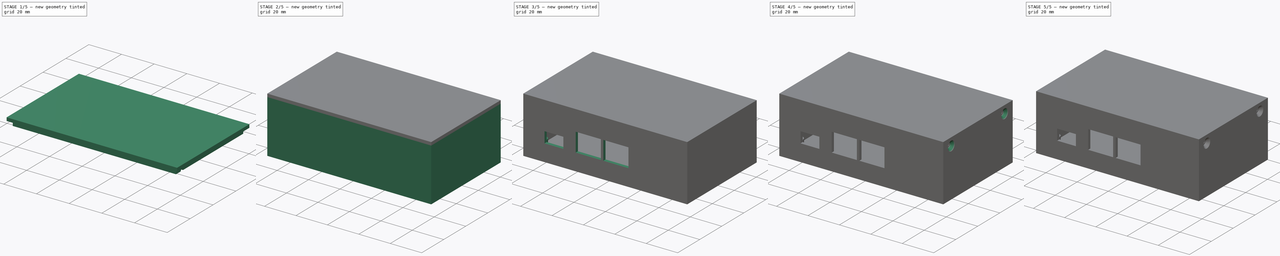
[diagram: build sequence overview — one tinted view per stage of 5, left to right]
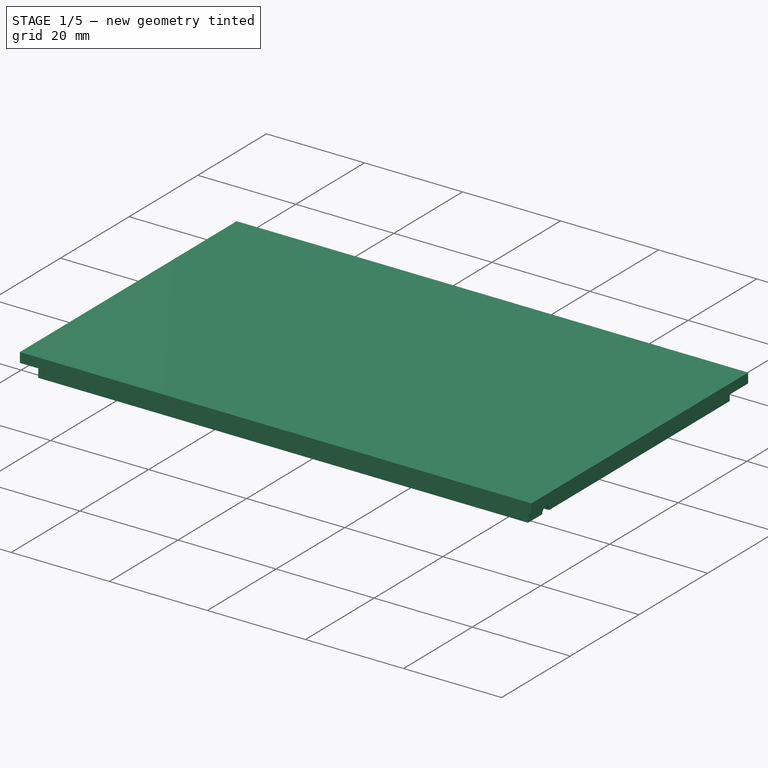
[diagram: stage 1 of 5 — iso view after this stage's code; geometry added in this stage tinted green]
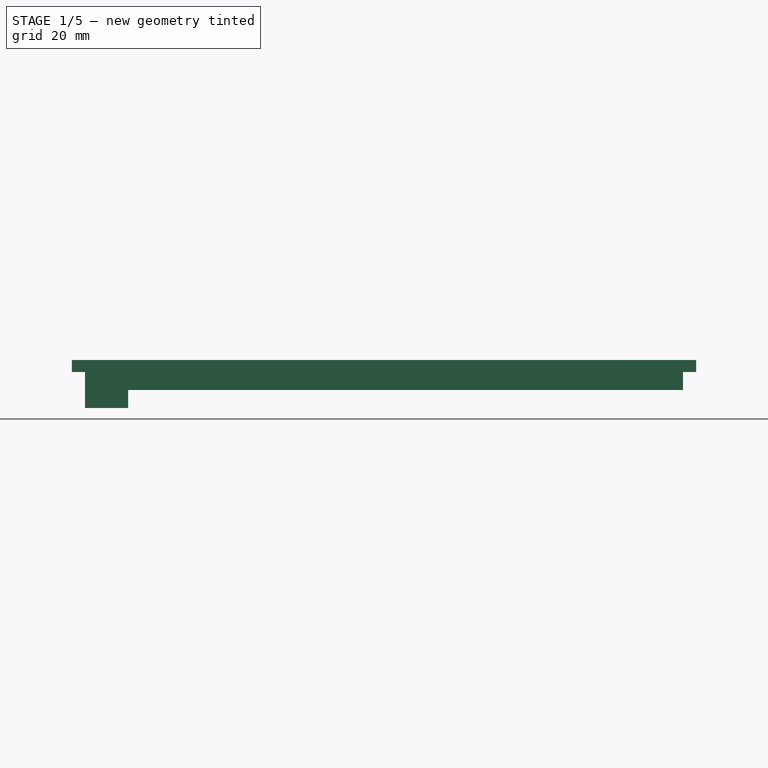
[diagram: stage 1 of 5 — front view after this stage's code; geometry added in this stage tinted green]
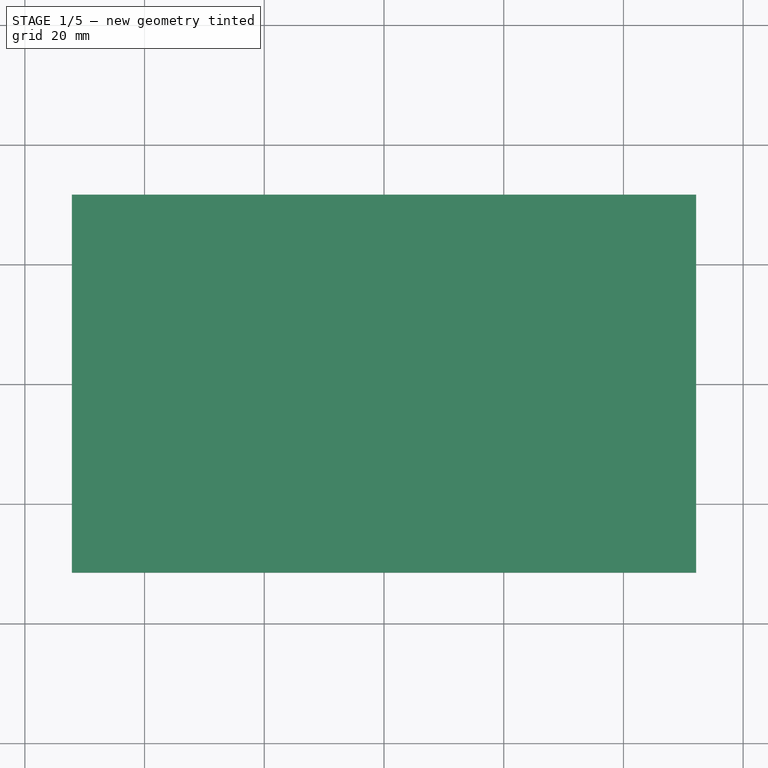
[diagram: stage 1 of 5 — top view after this stage's code; geometry added in this stage tinted green]
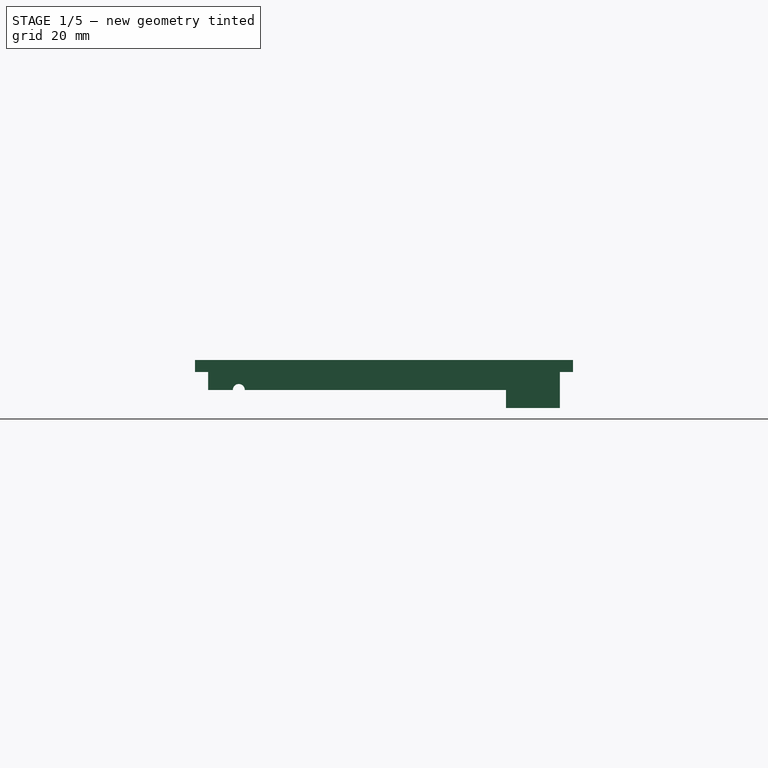
[diagram: stage 1 of 5 — right view after this stage's code; geometry added in this stage tinted green]
FCSTD DOCUMENT  (FreeCAD 0.20R29410 (Git))
Label: Dewair_klein_V2
License: All rights reserved
LicenseURL: http://en.wikipedia.org/wiki/All_rights_reserved
objects: Sketcher::SketchObject×18, PartDesign::Pad×10, PartDesign::Pocket×7, PartDesign::Mirrored×6, PartDesign::ShapeBinder×4, PartDesign::Body×4, PartDesign::MultiTransform×3, Part::Feature×1, App::FeaturePython×1, PartDesign::Fillet×1, PartDesign::Hole×1
note: 74 computed .brp shape members not serialized (recipe doc carries the construction recipe); baked Part::Feature solids carry a one-line shape summary decoded from their .brp

FEATURE [PartDesign::ShapeBinder] ShapeBinder003
  Support = -> [Feature]
  TraceSupport = false
FEATURE [Sketcher::SketchObject] Sketch013
  AttachmentOffset = pos=(0,0,33.8) rot=(0,0,1;0rad)
  ExternalGeometry = -> [ShapeBinder003]
  FullyConstrained = true
  MapMode = 5
  Placement = pos=(0,0,33.8) rot=(0,0,1;0rad)
  Support = -> [XY_Plane003]
  expr: .AttachmentOffset.Base.z = <<Masse>>.ddGehaeusehoehe
  expr: Constraints[10] = <<Masse>>.ddWandabstand + <<Masse>>.ddWand
  expr: Constraints[9] = <<Masse>>.ddWandabstand + <<Masse>>.ddWand
  sketch-geometry (4):
    g0: LineSegment StartX=-52.152 StartY=31.575 StartZ=0 EndX=52.152 EndY=31.575 EndZ=0
    g1: LineSegment StartX=52.152 StartY=31.575 StartZ=0 EndX=52.152 EndY=-31.575 EndZ=0
    g2: LineSegment StartX=52.152 StartY=-31.575 StartZ=0 EndX=-52.152 EndY=-31.575 EndZ=0
    g3: LineSegment StartX=-52.152 StartY=-31.575 StartZ=0 EndX=-52.152 EndY=31.575 EndZ=0
  constraints (11):
    c: Coincident(g0,g1)
    c: Coincident(g1,g2)
    c: Coincident(g2,g3)
    c: Coincident(g3,g0)
    c: Horizontal(g0)
    c: Horizontal(g2)
    c: Vertical(g1)
    c: Vertical(g3)
    c: Symmetric(g2,g0,g-1)
    c: DistanceX(g0,g-3) = 3
    c: DistanceY(g-3,g0) = 3
FEATURE [PartDesign::Pad] Pad006  label="Oberseite"
  Direction = (0,0,1)
  Length = 2
  Length2 = 10
  Profile = -> Sketch013
  ReferenceAxis = -> Sketch013 [N_Axis]
  Type = 0
  expr: Length = <<Masse>>.ddWand
FEATURE [Sketcher::SketchObject] Sketch014
  AttachmentOffset = pos=(0,0,33.8) rot=(0,0,1;0rad)
  ExternalGeometry = -> [ShapeBinder003]
  FullyConstrained = true
  MapMode = 5
  Placement = pos=(0,0,33.8) rot=(0,0,1;0rad)
  Support = -> [XY_Plane003]
  expr: .AttachmentOffset.Base.z = <<Masse>>.ddGehaeusehoehe
  expr: Constraints[18] = <<Masse>>.ddWandabstand - 0.2mm
  expr: Constraints[19] = <<Masse>>.ddWandabstand - 0.2mm
  expr: Constraints[20] = <<Masse>>.ddWand
  expr: Constraints[21] = <<Masse>>.ddWand
  sketch-geometry (8):
    g0: LineSegment StartX=-49.952 StartY=29.375 StartZ=0 EndX=49.952 EndY=29.375 EndZ=0
    g1: LineSegment StartX=49.952 StartY=29.375 StartZ=0 EndX=49.952 EndY=-29.375 EndZ=0
    g2: LineSegment StartX=49.952 StartY=-29.375 StartZ=0 EndX=-49.952 EndY=-29.375 EndZ=0
    g3: LineSegment StartX=-49.952 StartY=-29.375 StartZ=0 EndX=-49.952 EndY=29.375 EndZ=0
    g4: LineSegment StartX=-47.952 StartY=27.375 StartZ=0 EndX=47.952 EndY=27.375 EndZ=0
    g5: LineSegment StartX=47.952 StartY=27.375 StartZ=0 EndX=47.952 EndY=-27.375 EndZ=0
    g6: LineSegment StartX=47.952 StartY=-27.375 StartZ=0 EndX=-47.952 EndY=-27.375 EndZ=0
    g7: LineSegment StartX=-47.952 StartY=-27.375 StartZ=0 EndX=-47.952 EndY=27.375 EndZ=0
  constraints (22):
    c: Coincident(g0,g1)
    c: Coincident(g1,g2)
    c: Coincident(g2,g3)
    c: Coincident(g3,g0)
    c: Horizontal(g0)
    c: Horizontal(g2)
    c: Vertical(g1)
    c: Vertical(g3)
    c: Coincident(g4,g5)
    c: Coincident(g5,g6)
    c: Coincident(g6,g7)
    c: Coincident(g7,g4)
    c: Horizontal(g4)
    c: Horizontal(g6)
    c: Vertical(g5)
    c: Vertical(g7)
    c: Symmetric(g0,g1,g-1)
    c: Symmetric(g4,g5,g-1)
    c: DistanceY(g-3,g0) = 0.8
    c: DistanceX(g0,g-3) = 0.8
    c: DistanceX(g2,g6) = 2
    c: DistanceY(g2,g6) = 2
FEATURE [PartDesign::Pad] Pad007  label="Rand"
  BaseFeature = -> Pad006
  Direction = (0,0,1)
  Length = 3
  Length2 = 10
  Profile = -> Sketch014
  ReferenceAxis = -> Sketch014 [N_Axis]
  Reversed = true
  Type = 0
FEATURE [Sketcher::SketchObject] Sketch015
  AttachmentOffset = pos=(0,0,33.8) rot=(0,0,1;0rad)
  ExternalGeometry = -> [ShapeBinder003]
  FullyConstrained = true
  MapMode = 5
  Placement = pos=(0,0,33.8) rot=(0,0,1;0rad)
  Support = -> [XY_Plane003]
  expr: .AttachmentOffset.Base.z = <<Masse>>.ddGehaeusehoehe
  expr: Constraints[10] = <<Masse>>.ddSchraubstuetze
  expr: Constraints[11] = <<Masse>>.ddWand * 2 + 4mm + <<Masse>>.ddWandabstand
  expr: Constraints[8] = <<Masse>>.ddWandabstand - 0.2mm
  expr: Constraints[9] = <<Masse>>.ddWandabstand - 0.2mm
  sketch-geometry (4):
    g0: LineSegment StartX=-49.952 StartY=29.375 StartZ=0 EndX=-42.752 EndY=29.375 EndZ=0
    g1: LineSegment StartX=-42.752 StartY=29.375 StartZ=0 EndX=-42.752 EndY=20.375 EndZ=0
    g2: LineSegment StartX=-42.752 StartY=20.375 StartZ=0 EndX=-49.952 EndY=20.375 EndZ=0
    g3: LineSegment StartX=-49.952 StartY=20.375 StartZ=0 EndX=-49.952 EndY=29.375 EndZ=0
  constraints (12):
    c: Coincident(g0,g1)
    c: Coincident(g1,g2)
    c: Coincident(g2,g3)
    c: Coincident(g3,g0)
    c: Horizontal(g0)
    c: Horizontal(g2)
    c: Vertical(g1)
    c: Vertical(g3)
    c: DistanceY(g-3,g0) = 0.8
    c: DistanceX(g0,g-3) = 0.8
    c: DistanceX(g0,g0) = 7.2
    c: DistanceY(g1,g1) = 9
FEATURE [PartDesign::Pad] Pad008  label="Ecken"
  BaseFeature = -> Pad007
  Direction = (0,0,1)
  Length = 6
  Length2 = 10
  Profile = -> Sketch015
  ReferenceAxis = -> Sketch015 [N_Axis]
  Reversed = true
  Type = 0
  expr: Length = <<Masse>>.ddBohrlochdurchmesser + 2 * <<Masse>>.ddWand
FEATURE [Sketcher::SketchObject] Sketch016
  AttachmentOffset = pos=(0,0,1) rot=(0,0,1;0rad)
  ExternalGeometry = -> [ShapeBinder003]
  FullyConstrained = true
  MapMode = 7
  Placement = pos=(-50.152,28.575,0) rot=(0.57735,-0.57735,-0.57735;2.0944rad)
  Support = -> [ShapeBinder003]
  expr: .AttachmentOffset.Base.z = <<Masse>>.ddWandabstand
  expr: Constraints[2] = <<Masse>>.ddGehaeusehoehe - <<Masse>>.ddWand - <<Masse>>.ddBohrlochdurchmesser / 2
  expr: Constraints[3] = <<Masse>>.ddBohrlochdurchmesser
  sketch-geometry (2):
    g0: Circle CenterX=52.832 CenterY=30.8 CenterZ=0 NormalX=0 NormalY=0 NormalZ=1 AngleXU=0 Radius=1
    g1: LineSegment StartX=52.832 StartY=0 StartZ=0 EndX=52.832 EndY=30.8 EndZ=0
  constraints (5):
    c: Vertical(g1)
    c: Symmetric(g-3,g-3,g1)
    c: DistanceY(g1,g1) = 30.8
    c: Diameter(g0) = 2
    c: Coincident(g0,g1)
FEATURE [PartDesign::Pocket] Pocket006  label="Loecher"
  BaseFeature = -> Pad008
  Direction = (1,0,0)
  Length = 5
  Length2 = 5
  Profile = -> Sketch016
  ReferenceAxis = -> Sketch016 [N_Axis]
  Type = 1
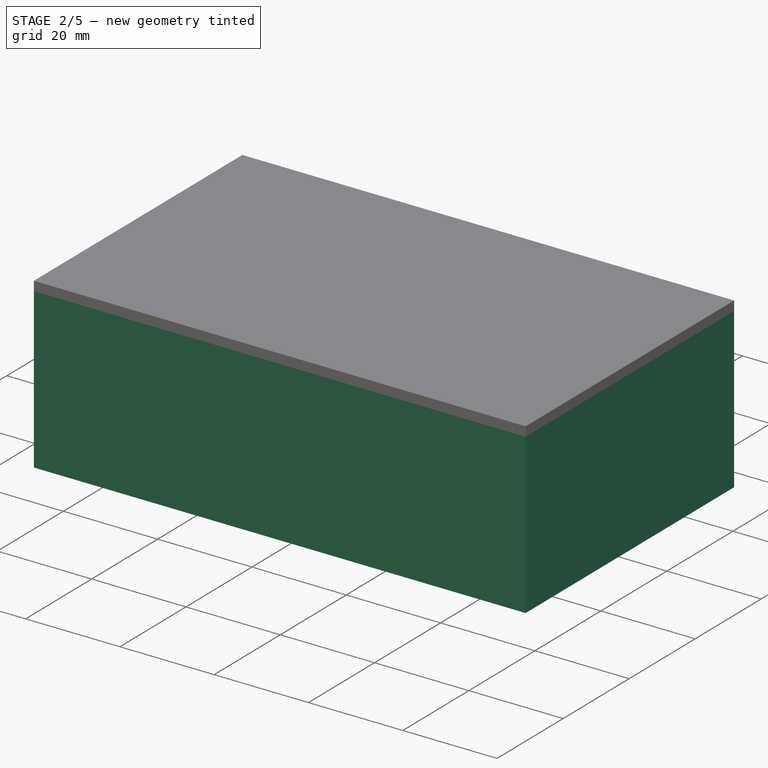
[diagram: stage 2 of 5 — iso view after this stage's code; geometry added in this stage tinted green]
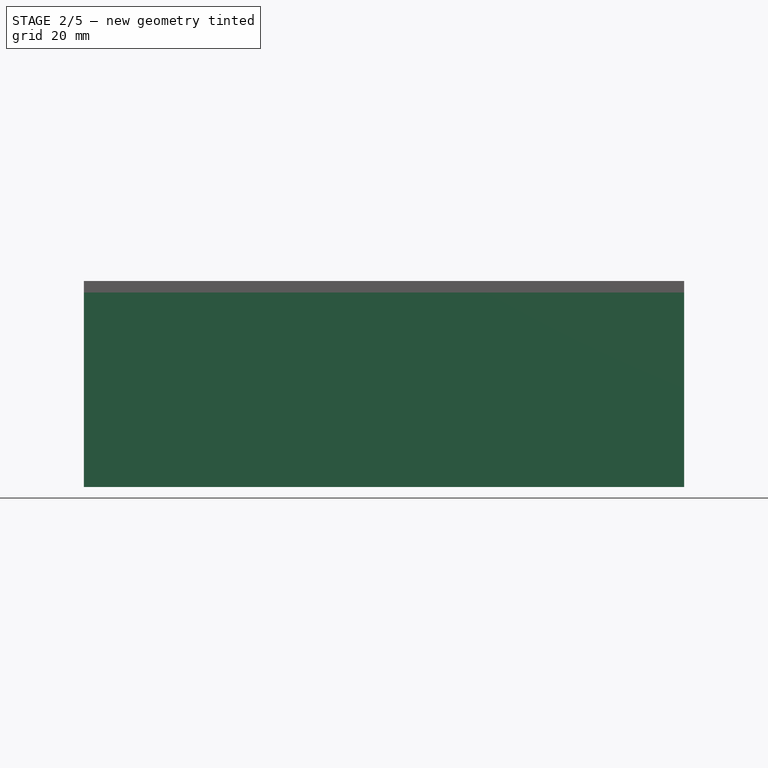
[diagram: stage 2 of 5 — front view after this stage's code; geometry added in this stage tinted green]
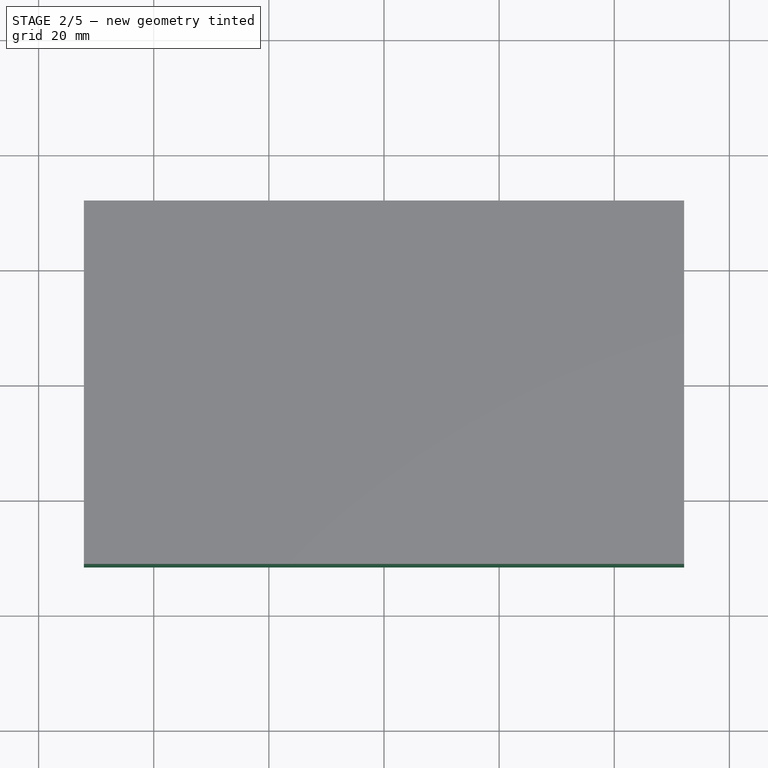
[diagram: stage 2 of 5 — top view after this stage's code; geometry added in this stage tinted green]
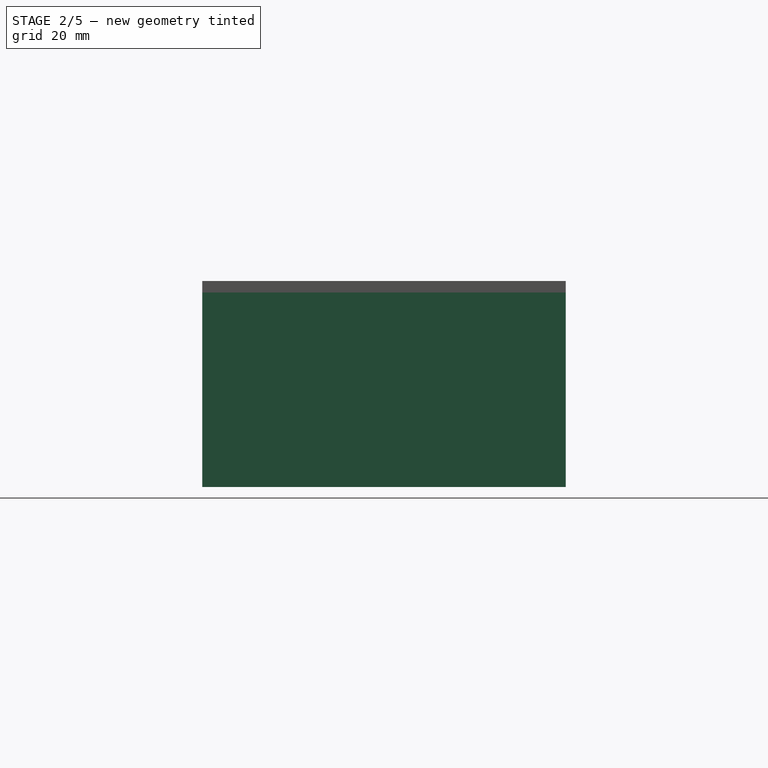
[diagram: stage 2 of 5 — right view after this stage's code; geometry added in this stage tinted green]
FEATURE [Part::Feature] Feature  label="DewAir"
  shape: bbox 98.3 x 57.15 x 1.6 mm, 178 faces (baked)
FEATURE [App::FeaturePython] dd  label="Masse"  # WARN: FeaturePython — macro-defined, semantics opaque (R4)
  DynamicData = Created with DynamicData (v2.46) workbench. | This is a simple container object built | for holding custom properties.
  ddBohrlochdurchmesser = 2
  ddElektronikhoehe = 25
  ddGehaeusehoehe = 33.8
  ddHasHangers = false
  ddHasPower = true
  ddHasRelay = true
  ddHasS0 = true
  ddHasS1 = true
  ddHasThreads = false
  ddHasUSBNodeMCU = true
  ddHasUSBWemos = true
  ddLEDdurchmesser = 3.2
  ddLEDhoehe = 5
  ddPCBabstand = 1.2
  ddPCBdicke = 1.6
  ddPCBoberkante = 10.8
  ddSchraubstuetze = 7.2
  ddTastendurchmesser = 5.2
  ddTasterhoehe = 5.2
  ddWand = 2
  ddWandabstand = 1
  expr: ddBohrlochdurchmesser = ddHasThreads == True ? 4mm : 2mm
  expr: ddGehaeusehoehe = ddPCBdicke + ddSchraubstuetze + ddElektronikhoehe
  expr: ddPCBoberkante = ddWand + ddSchraubstuetze + ddPCBdicke
  expr: ddSchraubstuetze = ddWand + ddTasterhoehe
FEATURE [PartDesign::ShapeBinder] ShapeBinder001
  Support = -> [Feature]
  TraceSupport = false
FEATURE [Sketcher::SketchObject] Sketch
  ExternalGeometry = -> [ShapeBinder001]
  FullyConstrained = true
  MapMode = 5
  Support = -> [XY_Plane]
  expr: Constraints[10] = <<Masse>>.ddWandabstand + <<Masse>>.ddWand
  expr: Constraints[29] = <<Masse>>.ddLEDdurchmesser
  expr: Constraints[30] = <<Masse>>.ddTastendurchmesser
  expr: Constraints[9] = <<Masse>>.ddWandabstand + <<Masse>>.ddWand
  sketch-geometry (14):
    g0: LineSegment StartX=-52.152 StartY=31.575 StartZ=0 EndX=52.152 EndY=31.575 EndZ=0
    g1: LineSegment StartX=52.152 StartY=31.575 StartZ=0 EndX=52.152 EndY=-31.575 EndZ=0
    g2: LineSegment StartX=52.152 StartY=-31.575 StartZ=0 EndX=-52.152 EndY=-31.575 EndZ=0
    g3: LineSegment StartX=-52.152 StartY=-31.575 StartZ=0 EndX=-52.152 EndY=31.575 EndZ=0
    g4: LineSegment StartX=36.071 StartY=19.685 StartZ=0 EndX=42.571 EndY=15.185 EndZ=0
    g5: LineSegment StartX=38.046 StartY=6.604 StartZ=0 EndX=40.586 EndY=6.604 EndZ=0
    g6: LineSegment StartX=38.046 StartY=-2.032 StartZ=0 EndX=40.586 EndY=-2.032 EndZ=0
    g7: LineSegment StartX=38.046 StartY=-19.177 StartZ=0 EndX=40.586 EndY=-19.177 EndZ=0
    g8: LineSegment StartX=38.046 StartY=-10.922 StartZ=0 EndX=40.586 EndY=-10.922 EndZ=0
    g9: Circle CenterX=39.321 CenterY=17.435 CenterZ=0 NormalX=0 NormalY=0 NormalZ=1 AngleXU=0 Radius=2.6
    g10: Circle CenterX=39.316 CenterY=6.604 CenterZ=0 NormalX=0 NormalY=0 NormalZ=1 AngleXU=0 Radius=1.6
    g11: Circle CenterX=39.316 CenterY=-2.032 CenterZ=0 NormalX=0 NormalY=0 NormalZ=1 AngleXU=0 Radius=1.6
    g12: Circle CenterX=39.316 CenterY=-10.922 CenterZ=0 NormalX=0 NormalY=0 NormalZ=1 AngleXU=0 Radius=1.6
    g13: Circle CenterX=39.316 CenterY=-19.177 CenterZ=0 NormalX=0 NormalY=0 NormalZ=1 AngleXU=0 Radius=1.6
  constraints (31):
    c: Coincident(g0,g1)
    c: Coincident(g1,g2)
    c: Coincident(g2,g3)
    c: Coincident(g3,g0)
    c: Horizontal(g0)
    c: Horizontal(g2)
    c: Vertical(g1)
    c: Vertical(g3)
    c: Symmetric(g2,g0,g-1)
    c: DistanceX(g2,g-3) = 3
    c: DistanceY(g2,g-3) = 3
    c: Coincident(g4,g-4)
    c: Coincident(g4,g-5)
    c: Coincident(g5,g-6)
    c: Coincident(g5,g-7)
    c: Coincident(g6,g-8)
    c: Coincident(g6,g-9)
    c: Coincident(g7,g-12)
    c: Coincident(g7,g-13)
    c: Coincident(g8,g-10)
    c: Coincident(g8,g-11)
    c: Symmetric(g5,g5,g10)
    c: Symmetric(g6,g6,g11)
    c: Symmetric(g8,g8,g12)
    c: Symmetric(g7,g7,g13)
    c: Symmetric(g4,g4,g9)
    c: Equal(g10,g11)
    c: Equal(g11,g12)
    c: Equal(g12,g13)
    c: Diameter(g13) = 3.2
    c: Diameter(g9) = 5.2
FEATURE [PartDesign::Pad] Pad  label="Bodenplatte"
  Direction = (0,0,1)
  Length = 2
  Length2 = 10
  Profile = -> Sketch
  ReferenceAxis = -> Sketch [N_Axis]
  Type = 0
  expr: Length = <<Masse>>.ddWand
FEATURE [Sketcher::SketchObject] Sketch001
  ExternalGeometry = -> [ShapeBinder001]
  FullyConstrained = true
  MapMode = 5
  Support = -> [XY_Plane]
  expr: Constraints[16] = <<Masse>>.ddWandabstand
  expr: Constraints[17] = <<Masse>>.ddWandabstand
  expr: Constraints[19] = <<Masse>>.ddWand
  expr: Constraints[20] = <<Masse>>.ddWand
  sketch-geometry (8):
    g0: LineSegment StartX=-50.152 StartY=29.575 StartZ=0 EndX=50.152 EndY=29.575 EndZ=0
    g1: LineSegment StartX=50.152 StartY=29.575 StartZ=0 EndX=50.152 EndY=-29.575 EndZ=0
    g2: LineSegment StartX=50.152 StartY=-29.575 StartZ=0 EndX=-50.152 EndY=-29.575 EndZ=0
    g3: LineSegment StartX=-50.152 StartY=-29.575 StartZ=0 EndX=-50.152 EndY=29.575 EndZ=0
    g4: LineSegment StartX=-52.152 StartY=31.575 StartZ=0 EndX=52.152 EndY=31.575 EndZ=0
    g5: LineSegment StartX=52.152 StartY=31.575 StartZ=0 EndX=52.152 EndY=-31.575 EndZ=0
    g6: LineSegment StartX=52.152 StartY=-31.575 StartZ=0 EndX=-52.152 EndY=-31.575 EndZ=0
    g7: LineSegment StartX=-52.152 StartY=-31.575 StartZ=0 EndX=-52.152 EndY=31.575 EndZ=0
  constraints (22):
    c: Coincident(g0,g1)
    c: Coincident(g1,g2)
    c: Coincident(g2,g3)
    c: Coincident(g3,g0)
    c: Horizontal(g0)
    c: Horizontal(g2)
    c: Vertical(g1)
    c: Vertical(g3)
    c: Coincident(g4,g5)
    c: Coincident(g5,g6)
    c: Coincident(g6,g7)
    c: Coincident(g7,g4)
    c: Horizontal(g4)
    c: Horizontal(g6)
    c: Vertical(g5)
    c: Vertical(g7)
    c: DistanceY(g-3,g0) = 1
    c: DistanceX(g0,g-3) = 1
    c: Symmetric(g0,g1,g-1)
    c: DistanceY(g6,g2) = 2
    c: DistanceX(g6,g2) = 2
    c: Symmetric(g6,g4,g-1)
FEATURE [PartDesign::Pad] Pad001  label="Außenwand"
  BaseFeature = -> Pad
  Direction = (0,0,1)
  Length = 33.8
  Length2 = 10
  Profile = -> Sketch001
  ReferenceAxis = -> Sketch001 [N_Axis]
  Type = 0
  expr: Length = <<Masse>>.ddGehaeusehoehe
FEATURE [PartDesign::Mirrored] Mirrored001
  MirrorPlane = -> YZ_Plane003
FEATURE [PartDesign::Mirrored] Mirrored002
  MirrorPlane = -> XZ_Plane003
FEATURE [PartDesign::MultiTransform] MultiTransform
  BaseFeature = -> Pocket006
  Originals = -> [Pad008,Pocket006]
  Transformations = -> [Mirrored001,Mirrored002]
FEATURE [PartDesign::Body] Body  label="Unterschale"
  Group = -> [ShapeBinder001,Sketch,Pad,Sketch001,Pad001,Sketch002,Pad002,Sketch006,Pocket,Sketch007,Pocket001,Sketch008,Pocket002,Sketch009,Pocket003,Sketch010,Pocket004,Sketch011,Pocket005,Sketch012,Hole,MultiTransform001,Mirrored,Mirrored003]
  Origin = -> Origin
  Tip = -> MultiTransform001
FEATURE [Sketcher::SketchObject] Sketch017
  AttachmentOffset = pos=(0,0,33.8) rot=(0,0,1;0rad)
  ExternalGeometry = -> [ShapeBinder003]
  FullyConstrained = true
  MapMode = 5
  Placement = pos=(0,0,33.8) rot=(0,0,1;0rad)
  Support = -> [XY_Plane003]
  expr: .AttachmentOffset.Base.z = <<Masse>>.ddGehaeusehoehe
  expr: Constraints[12] = <<Masse>>.ddWand + <<Masse>>.ddWandabstand - (<<Masse>>.ddHasHangers == True ? 0mm : 30mm)
  sketch-geometry (8):
    g0: ArcOfCircle CenterX=-32.152 CenterY=5.08972 CenterZ=0 NormalX=0 NormalY=0 NormalZ=1 AngleXU=0 Radius=6 StartAngle=0.785398 EndAngle=2.35619
    g1: LineSegment StartX=-36.3946 StartY=9.33236 StartZ=0 EndX=-32.152 EndY=5.08972 EndZ=0
    g2: LineSegment StartX=-27.9094 StartY=9.33236 StartZ=0 EndX=-32.152 EndY=5.08972 EndZ=0
    g3: LineSegment StartX=-36.3946 StartY=9.33236 StartZ=0 EndX=-44.152 EndY=1.575 EndZ=0
    g4: LineSegment StartX=-27.9094 StartY=9.33236 StartZ=0 EndX=-20.152 EndY=1.575 EndZ=0
    g5: Circle CenterX=-32.152 CenterY=6.33236 CenterZ=0 NormalX=0 NormalY=0 NormalZ=1 AngleXU=0 Radius=1.75
    g6: LineSegment StartX=-44.152 StartY=1.575 StartZ=0 EndX=-20.152 EndY=1.575 EndZ=0
    g7: LineSegment StartX=-32.152 StartY=1.575 StartZ=0 EndX=-32.152 EndY=11.0897 EndZ=0
  constraints (20):
    c: Diameter(g0) = 12
    c: Coincident(g1,g0)
    c: Coincident(g1,g0)
    c: Coincident(g2,g0)
    c: Coincident(g2,g0)
    c: Angle(g2,g1) = 1.5708
    c: Tangent(g3,g0) = -1.5708
    c: Tangent(g4,g0) = 1.5708
    c: Diameter(g5) = 3.5  'Loch'
    c: Coincident(g6,g3)
    c: Coincident(g6,g4)
    c: Vertical(g0,g5)
    c: DistanceY(g-3,g3) = -27
    c: DistanceX(g-3,g3) = 5
    c: PointOnObject(g7,g0)
    c: Vertical(g7)
    c: Symmetric(g7,g7,g5)
    c: Horizontal(g6)
    c: Symmetric(g3,g4,g7)
    c: DistanceX(g6,g6) = 24
FEATURE [PartDesign::Pad] Pad009  label="Lasche"
  BaseFeature = -> MultiTransform
  Direction = (0,0,1)
  Length = 2
  Length2 = 10
  Profile = -> Sketch017
  ReferenceAxis = -> Sketch017 [N_Axis]
  Type = 0
  expr: Length = <<Masse>>.ddWand
FEATURE [PartDesign::Mirrored] Mirrored004
  MirrorPlane = -> Sketch017 [V_Axis]
FEATURE [PartDesign::Mirrored] Mirrored005
  MirrorPlane = -> Sketch017 [H_Axis]
FEATURE [PartDesign::MultiTransform] MultiTransform002
  BaseFeature = -> Pad009
  Originals = -> [Pad009]
  Transformations = -> [Mirrored004,Mirrored005]
FEATURE [PartDesign::Body] Body003  label="Deckel"
  Group = -> [ShapeBinder003,Sketch013,Pad006,Sketch014,Pad007,Sketch015,Pad008,Sketch016,Pocket006,MultiTransform,Mirrored001,Mirrored002,Sketch017,Pad009,MultiTransform002,Mirrored004,Mirrored005]
  Origin = -> Origin003
  Tip = -> MultiTransform002
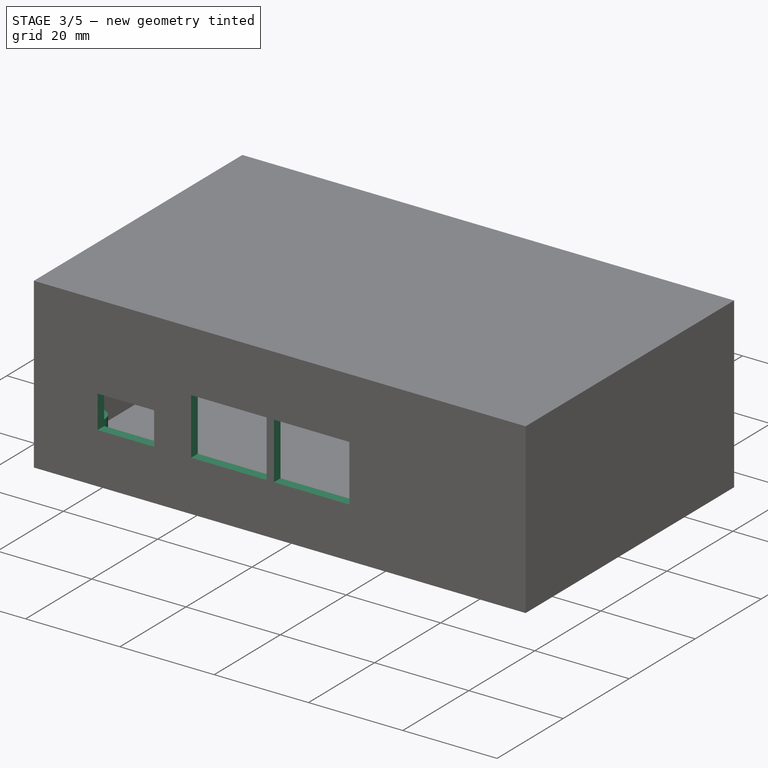
[diagram: stage 3 of 5 — iso view after this stage's code; geometry added in this stage tinted green]
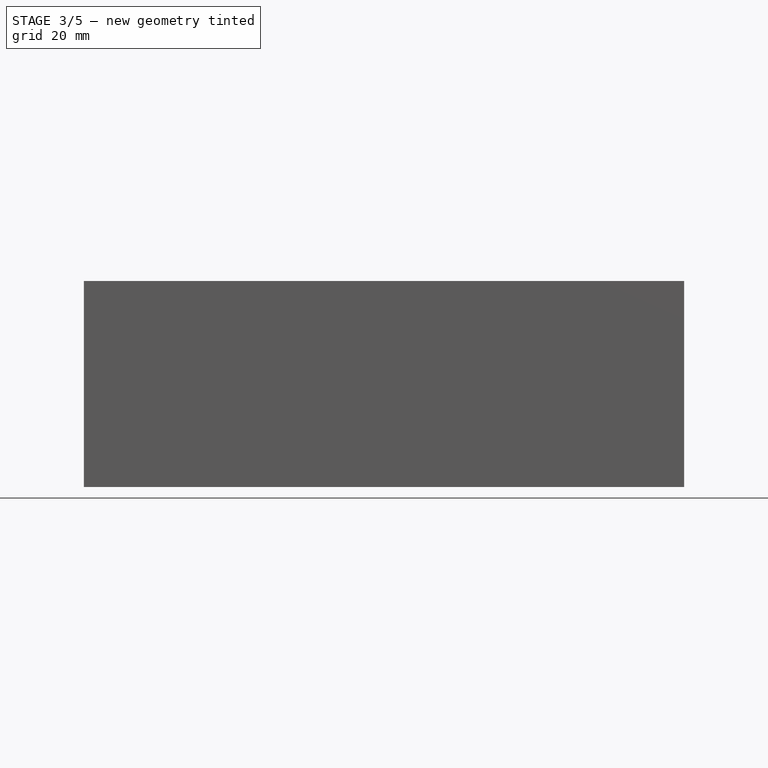
[diagram: stage 3 of 5 — front view after this stage's code; geometry added in this stage tinted green]
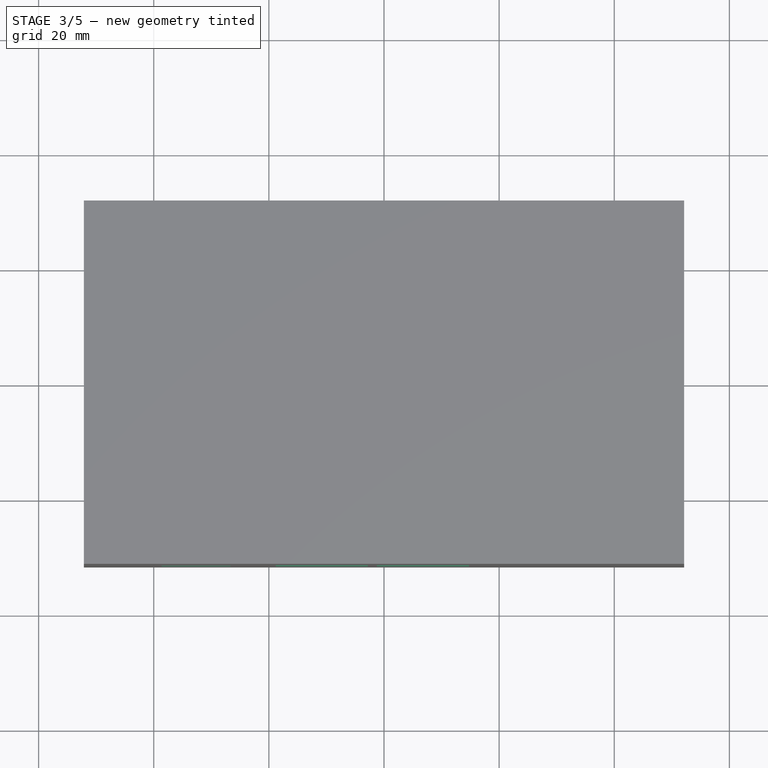
[diagram: stage 3 of 5 — top view after this stage's code; geometry added in this stage tinted green]
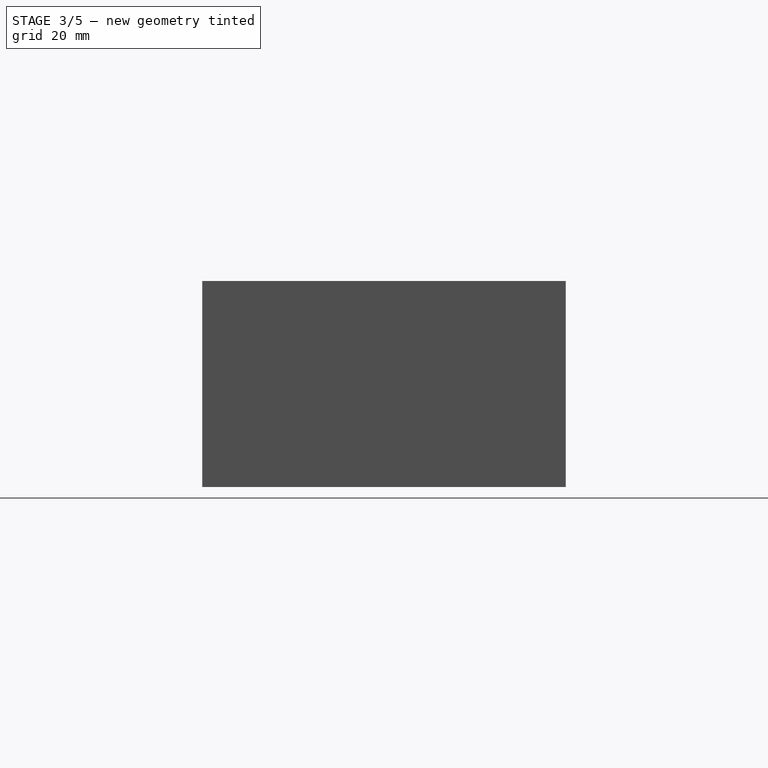
[diagram: stage 3 of 5 — right view after this stage's code; geometry added in this stage tinted green]
FEATURE [Sketcher::SketchObject] Sketch002
  AttachmentOffset = pos=(0,0,2) rot=(0,0,1;0rad)
  ExternalGeometry = -> [ShapeBinder001]
  FullyConstrained = true
  MapMode = 5
  Placement = pos=(0,0,2) rot=(0,0,1;0rad)
  Support = -> [XY_Plane]
  expr: .AttachmentOffset.Base.z = <<Masse>>.ddWand
  expr: Constraints[15] = <<Masse>>.ddBohrlochdurchmesser + 2 * <<Masse>>.ddWand
  expr: Constraints[31] = <<Masse>>.ddBohrlochdurchmesser
  sketch-geometry (16):
    g0: Circle CenterX=-45.211 CenterY=24.384 CenterZ=0 NormalX=0 NormalY=0 NormalZ=1 AngleXU=0 Radius=3
    g1: Circle CenterX=23.789 CenterY=24.384 CenterZ=0 NormalX=0 NormalY=0 NormalZ=1 AngleXU=0 Radius=3
    g2: Circle CenterX=34.033 CenterY=24.384 CenterZ=0 NormalX=0 NormalY=0 NormalZ=1 AngleXU=0 Radius=3
    g3: Circle CenterX=44.828 CenterY=24.384 CenterZ=0 NormalX=0 NormalY=0 NormalZ=1 AngleXU=0 Radius=3
    g4: Circle CenterX=-45.211 CenterY=-24.257 CenterZ=0 NormalX=0 NormalY=0 NormalZ=1 AngleXU=0 Radius=3
    g5: Circle CenterX=23.789 CenterY=-24.257 CenterZ=0 NormalX=0 NormalY=0 NormalZ=1 AngleXU=0 Radius=3
    g6: Circle CenterX=34.033 CenterY=-24.257 CenterZ=0 NormalX=0 NormalY=0 NormalZ=1 AngleXU=0 Radius=3
    g7: Circle CenterX=44.828 CenterY=-24.13 CenterZ=0 NormalX=0 NormalY=0 NormalZ=1 AngleXU=0 Radius=3
    g8: Circle CenterX=-45.211 CenterY=24.384 CenterZ=0 NormalX=0 NormalY=0 NormalZ=1 AngleXU=0 Radius=1
    g9: Circle CenterX=23.789 CenterY=24.384 CenterZ=0 NormalX=0 NormalY=0 NormalZ=1 AngleXU=0 Radius=1
    g10: Circle CenterX=34.033 CenterY=24.384 CenterZ=0 NormalX=0 NormalY=0 NormalZ=1 AngleXU=0 Radius=1
    g11: Circle CenterX=44.828 CenterY=24.384 CenterZ=0 NormalX=0 NormalY=0 NormalZ=1 AngleXU=0 Radius=1
    g12: Circle CenterX=-45.211 CenterY=-24.257 CenterZ=0 NormalX=0 NormalY=0 NormalZ=1 AngleXU=0 Radius=1
    g13: Circle CenterX=23.789 CenterY=-24.257 CenterZ=0 NormalX=0 NormalY=0 NormalZ=1 AngleXU=0 Radius=1
    g14: Circle CenterX=34.033 CenterY=-24.257 CenterZ=0 NormalX=0 NormalY=0 NormalZ=1 AngleXU=0 Radius=1
    g15: Circle CenterX=44.828 CenterY=-24.13 CenterZ=0 NormalX=0 NormalY=0 NormalZ=1 AngleXU=0 Radius=1
  constraints (32):
    c: Coincident(g0,g-3)
    c: Coincident(g1,g-4)
    c: Coincident(g2,g-5)
    c: Coincident(g3,g-6)
    c: Coincident(g4,g-10)
    c: Coincident(g5,g-9)
    c: Coincident(g6,g-8)
    c: Coincident(g7,g-7)
    c: Equal(g0,g1)
    c: Equal(g1,g2)
    c: Equal(g2,g3)
    c: Equal(g3,g4)
    c: Equal(g4,g5)
    c: Equal(g5,g6)
    c: Equal(g6,g7)
    c: Diameter(g0) = 6
    c: Coincident(g8,g0)
    c: Coincident(g9,g1)
    c: Coincident(g10,g2)
    c: Coincident(g11,g3)
    c: Coincident(g12,g4)
    c: Coincident(g13,g5)
    c: Coincident(g14,g6)
    c: Coincident(g15,g7)
    c: Equal(g15,g14)
    c: Equal(g14,g13)
    c: Equal(g13,g12)
    c: Equal(g12,g8)
    c: Equal(g8,g9)
    c: Equal(g9,g10)
    c: Equal(g10,g11)
    c: Diameter(g8) = 2
FEATURE [PartDesign::Pad] Pad002  label="Stuetzen"
  BaseFeature = -> Pad001
  Direction = (0,0,1)
  Length = 7.2
  Length2 = 10
  Profile = -> Sketch002
  ReferenceAxis = -> Sketch002 [N_Axis]
  Type = 0
  expr: Length = <<Masse>>.ddSchraubstuetze
FEATURE [PartDesign::Body] Body002  label="Taste"
  Group = -> [ShapeBinder002,Sketch004,Pad004,Sketch005,Pad005,Fillet]
  Origin = -> Origin002
  Tip = -> Fillet
FEATURE [Sketcher::SketchObject] Sketch006
  AttachmentOffset = pos=(0,0,3) rot=(0,0,1;0rad)
  ExternalGeometry = -> [ShapeBinder001]
  FullyConstrained = true
  MapMode = 7
  Placement = pos=(-49.152,-31.575,7e-16) rot=(1,0,0;1.5708rad)
  Support = -> [ShapeBinder001]
  expr: .AttachmentOffset.Base.z = <<Masse>>.ddWand + <<Masse>>.ddWandabstand + (<<Masse>>.ddHasPower == True ? 0mm : 20mm)
  expr: Constraints[12] = <<Masse>>.ddPCBoberkante
  sketch-geometry (6):
    g0: LineSegment StartX=10.51 StartY=17.8 StartZ=0 EndX=22.51 EndY=17.8 EndZ=0
    g1: LineSegment StartX=22.51 StartY=17.8 StartZ=0 EndX=22.51 EndY=10.8 EndZ=0
    g2: LineSegment StartX=22.51 StartY=10.8 StartZ=0 EndX=10.51 EndY=10.8 EndZ=0
    g3: LineSegment StartX=10.51 StartY=10.8 StartZ=0 EndX=10.51 EndY=17.8 EndZ=0
    g4: GeomPoint X=16.51 Y=1.3e-15 Z=0
    g5: LineSegment StartX=16.51 StartY=1.3e-15 StartZ=0 EndX=16.51 EndY=10.8 EndZ=0
  constraints (15):
    c: Coincident(g0,g1)
    c: Coincident(g1,g2)
    c: Coincident(g2,g3)
    c: Coincident(g3,g0)
    c: Horizontal(g0)
    c: Horizontal(g2)
    c: Vertical(g1)
    c: Vertical(g3)
    c: Symmetric(g-3,g-4,g4)
    c: DistanceX(g0,g0) = 12
    c: Coincident(g5,g4)
    c: Vertical(g5)
    c: DistanceY(g5,g5) = 10.8
    c: Symmetric(g2,g1,g5)
    c: DistanceY(g1,g1) = 7
FEATURE [PartDesign::Pocket] Pocket  label="Power"
  BaseFeature = -> Pad002
  Direction = (0,1,-2e-16)
  Length = 2
  Length2 = 5
  Profile = -> Sketch006
  ReferenceAxis = -> Sketch006 [N_Axis]
  Type = 0
  expr: Length = <<Masse>>.ddWand
FEATURE [Sketcher::SketchObject] Sketch007
  AttachmentOffset = pos=(0,0,3) rot=(0,0,1;0rad)
  ExternalGeometry = -> [ShapeBinder001]
  FullyConstrained = true
  MapMode = 7
  Placement = pos=(-49.152,-31.575,7e-16) rot=(1,0,0;1.5708rad)
  Support = -> [ShapeBinder001]
  expr: .AttachmentOffset.Base.z = <<Masse>>.ddWand + <<Masse>>.ddWandabstand + (<<Masse>>.ddHasS0 == True ? 0mm : 20mm)
  expr: Constraints[10] = <<Masse>>.ddPCBoberkante
  sketch-geometry (5):
    g0: LineSegment StartX=30.354 StartY=22.8 StartZ=0 EndX=46.354 EndY=22.8 EndZ=0
    g1: LineSegment StartX=46.354 StartY=22.8 StartZ=0 EndX=46.354 EndY=10.8 EndZ=0
    g2: LineSegment StartX=46.354 StartY=10.8 StartZ=0 EndX=30.354 EndY=10.8 EndZ=0
    g3: LineSegment StartX=30.354 StartY=10.8 StartZ=0 EndX=30.354 EndY=22.8 EndZ=0
    g4: LineSegment StartX=38.354 StartY=1.8e-15 StartZ=0 EndX=38.354 EndY=10.8 EndZ=0
  constraints (14):
    c: Coincident(g0,g1)
    c: Coincident(g1,g2)
    c: Coincident(g2,g3)
    c: Coincident(g3,g0)
    c: Horizontal(g0)
    c: Horizontal(g2)
    c: Vertical(g1)
    c: Vertical(g3)
    c: Vertical(g4)
    c: Symmetric(g-3,g-3,g4)
    c: DistanceY(g4,g4) = 10.8
    c: Symmetric(g2,g1,g4)
    c: DistanceX(g0,g0) = 16
    c: DistanceY(g3,g3) = 12
FEATURE [PartDesign::Pocket] Pocket001  label="S0"
  BaseFeature = -> Pocket
  Direction = (0,1,-2e-16)
  Length = 2
  Length2 = 5
  Profile = -> Sketch007
  ReferenceAxis = -> Sketch007 [N_Axis]
  Type = 0
  expr: Length = <<Masse>>.ddWand
FEATURE [Sketcher::SketchObject] Sketch008
  AttachmentOffset = pos=(0,0,3) rot=(0,0,1;0rad)
  ExternalGeometry = -> [ShapeBinder001]
  FullyConstrained = true
  MapMode = 7
  Placement = pos=(-49.152,-31.575,7e-16) rot=(1,0,0;1.5708rad)
  Support = -> [ShapeBinder001]
  expr: .AttachmentOffset.Base.z = <<Masse>>.ddWand + <<Masse>>.ddWandabstand + (<<Masse>>.ddHasS1 == True ? 0mm : 20mm)
  expr: Constraints[10] = <<Masse>>.ddPCBoberkante
  sketch-geometry (5):
    g0: LineSegment StartX=47.92 StartY=22.8 StartZ=0 EndX=63.92 EndY=22.8 EndZ=0
    g1: LineSegment StartX=63.92 StartY=22.8 StartZ=0 EndX=63.92 EndY=10.8 EndZ=0
    g2: LineSegment StartX=63.92 StartY=10.8 StartZ=0 EndX=47.92 EndY=10.8 EndZ=0
    g3: LineSegment StartX=47.92 StartY=10.8 StartZ=0 EndX=47.92 EndY=22.8 EndZ=0
    g4: LineSegment StartX=55.92 StartY=1.8e-15 StartZ=0 EndX=55.92 EndY=10.8 EndZ=0
  constraints (14):
    c: Coincident(g0,g1)
    c: Coincident(g1,g2)
    c: Coincident(g2,g3)
    c: Coincident(g3,g0)
    c: Horizontal(g0)
    c: Horizontal(g2)
    c: Vertical(g1)
    c: Vertical(g3)
    c: Vertical(g4)
    c: Symmetric(g-3,g-3,g4)
    c: DistanceY(g4,g4) = 10.8
    c: Symmetric(g2,g1,g4)
    c: DistanceX(g0,g0) = 16
    c: DistanceY(g3,g3) = 12
FEATURE [PartDesign::Pocket] Pocket002  label="S1"
  BaseFeature = -> Pocket001
  Direction = (0,1,-2e-16)
  Length = 2
  Length2 = 5
  Profile = -> Sketch008
  ReferenceAxis = -> Sketch008 [N_Axis]
  Type = 0
  expr: Length = <<Masse>>.ddWand
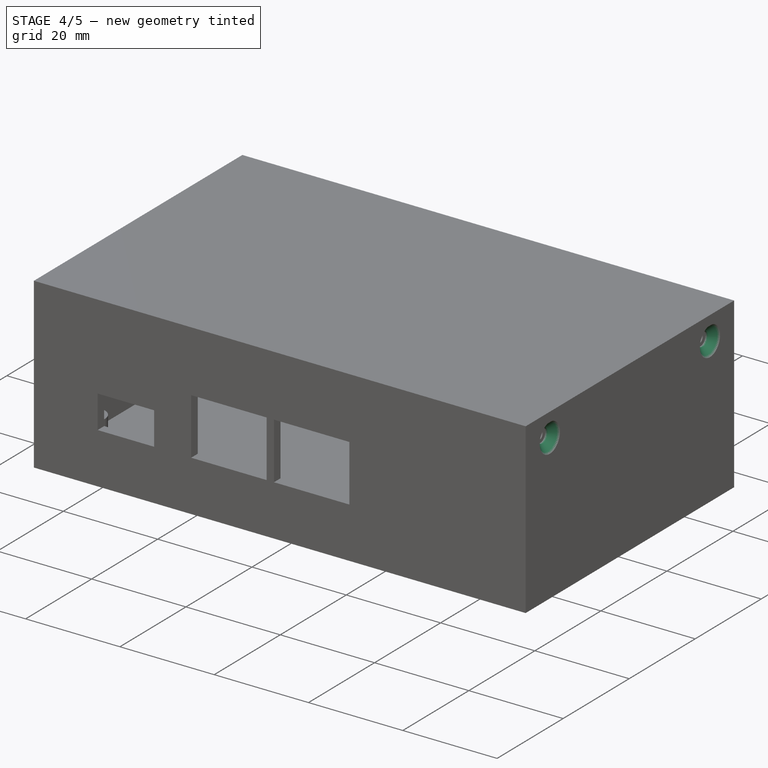
[diagram: stage 4 of 5 — iso view after this stage's code; geometry added in this stage tinted green]
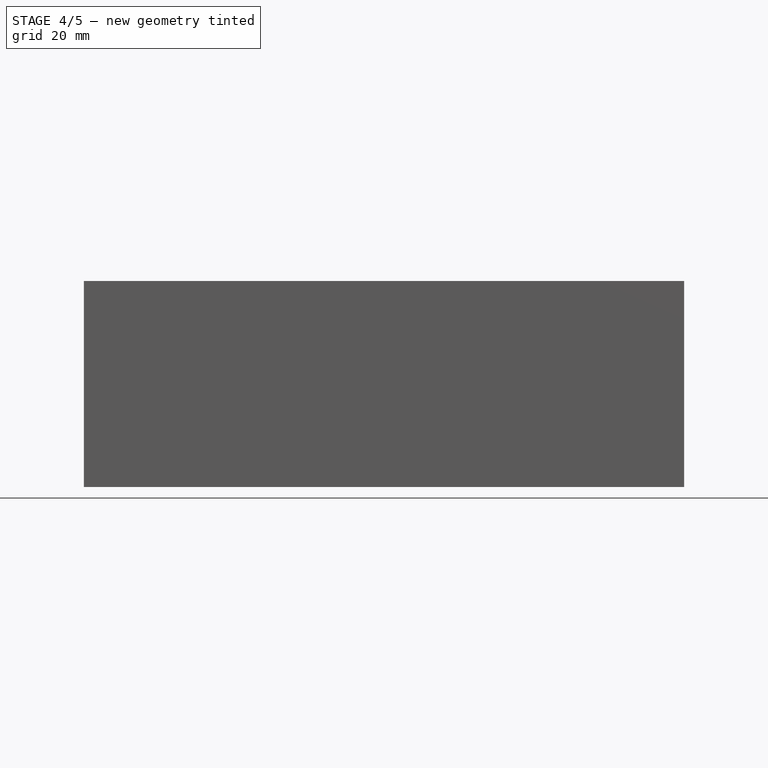
[diagram: stage 4 of 5 — front view after this stage's code; geometry added in this stage tinted green]
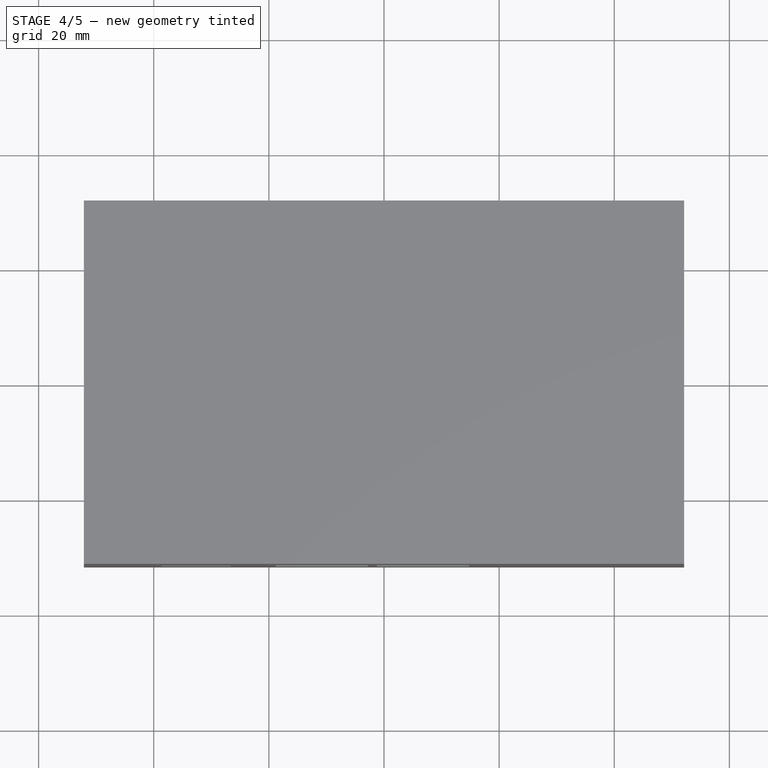
[diagram: stage 4 of 5 — top view after this stage's code; geometry added in this stage tinted green]
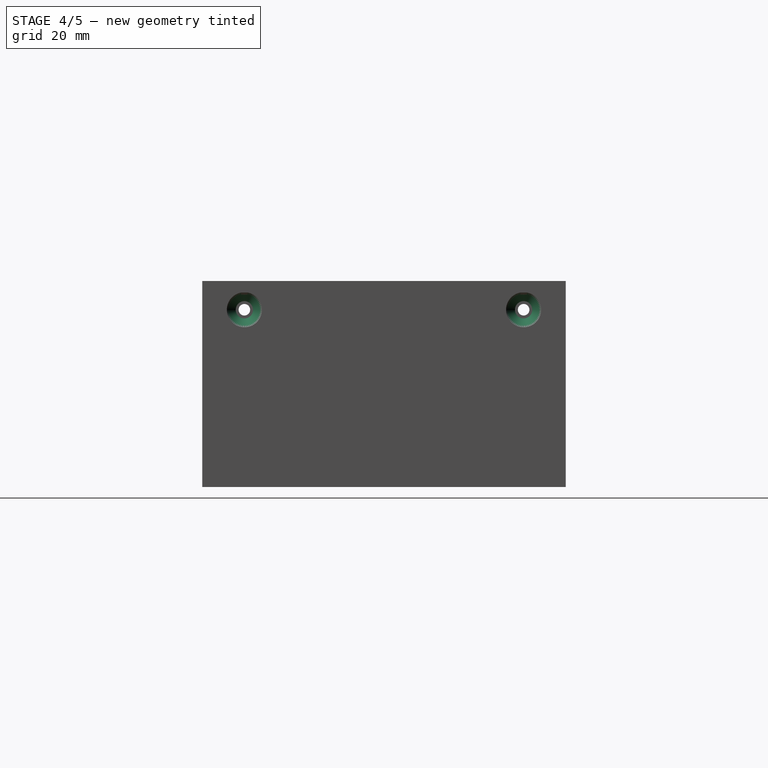
[diagram: stage 4 of 5 — right view after this stage's code; geometry added in this stage tinted green]
FEATURE [Sketcher::SketchObject] Sketch009
  AttachmentOffset = pos=(0,0,3) rot=(0,0,1;0rad)
  ExternalGeometry = -> [ShapeBinder001]
  FullyConstrained = true
  MapMode = 7
  Placement = pos=(-52.152,28.575,0) rot=(0.57735,-0.57735,-0.57735;2.0944rad)
  Support = -> [ShapeBinder001]
  expr: .AttachmentOffset.Base.z = <<Masse>>.ddWandabstand + <<Masse>>.ddWand + (<<Masse>>.ddHasRelay == True ? 0mm : 20mm)
  expr: Constraints[13] = <<Masse>>.ddPCBoberkante
  sketch-geometry (5):
    g0: LineSegment StartX=35.91 StartY=17.8 StartZ=0 EndX=47.91 EndY=17.8 EndZ=0
    g1: LineSegment StartX=47.91 StartY=17.8 StartZ=0 EndX=47.91 EndY=10.8 EndZ=0
    g2: LineSegment StartX=47.91 StartY=10.8 StartZ=0 EndX=35.91 EndY=10.8 EndZ=0
    g3: LineSegment StartX=35.91 StartY=10.8 StartZ=0 EndX=35.91 EndY=17.8 EndZ=0
    g4: LineSegment StartX=41.91 StartY=0 StartZ=0 EndX=41.91 EndY=10.8 EndZ=0
  constraints (14):
    c: Coincident(g0,g1)
    c: Coincident(g1,g2)
    c: Coincident(g2,g3)
    c: Coincident(g3,g0)
    c: Horizontal(g0)
    c: Horizontal(g2)
    c: Vertical(g1)
    c: Vertical(g3)
    c: Vertical(g4)
    c: Symmetric(g-3,g-4,g4)
    c: Symmetric(g2,g1,g4)
    c: DistanceX(g0,g0) = 12
    c: DistanceY(g3,g3) = 7
    c: DistanceY(g4,g4) = 10.8
FEATURE [PartDesign::Pocket] Pocket003  label="Relais"
  BaseFeature = -> Pocket002
  Direction = (1,0,0)
  Length = 2
  Length2 = 5
  Profile = -> Sketch009
  ReferenceAxis = -> Sketch009 [N_Axis]
  Type = 0
  expr: Length = <<Masse>>.ddWand
FEATURE [Sketcher::SketchObject] Sketch010
  AttachmentOffset = pos=(0,0,3) rot=(0,0,1;0rad)
  ExternalGeometry = -> [ShapeBinder001]
  FullyConstrained = true
  MapMode = 7
  Placement = pos=(-52.152,28.575,0) rot=(0.57735,-0.57735,-0.57735;2.0944rad)
  Support = -> [ShapeBinder001]
  expr: .AttachmentOffset.Base.z = <<Masse>>.ddWandabstand + <<Masse>>.ddWand + (<<Masse>>.ddHasUSBWemos == True ? 0mm : 20mm)
  expr: Constraints[10] = <<Masse>>.ddPCBoberkante + 9mm
  sketch-geometry (5):
    g0: LineSegment StartX=17.5721 StartY=27.8 StartZ=0 EndX=29.5721 EndY=27.8 EndZ=0
    g1: LineSegment StartX=29.5721 StartY=27.8 StartZ=0 EndX=29.5721 EndY=19.8 EndZ=0
    g2: LineSegment StartX=29.5721 StartY=19.8 StartZ=0 EndX=17.5721 EndY=19.8 EndZ=0
    g3: LineSegment StartX=17.5721 StartY=19.8 StartZ=0 EndX=17.5721 EndY=27.8 EndZ=0
    g4: LineSegment StartX=23.5721 StartY=0 StartZ=0 EndX=23.5721 EndY=19.8 EndZ=0
  constraints (14):
    c: Coincident(g0,g1)
    c: Coincident(g1,g2)
    c: Coincident(g2,g3)
    c: Coincident(g3,g0)
    c: Horizontal(g0)
    c: Horizontal(g2)
    c: Vertical(g1)
    c: Vertical(g3)
    c: Vertical(g4)
    c: Symmetric(g-3,g-4,g4)
    c: DistanceY(g4,g4) = 19.8
    c: Symmetric(g2,g1,g4)
    c: DistanceX(g0,g0) = 12
    c: DistanceY(g3,g3) = 8
FEATURE [PartDesign::Pocket] Pocket004  label="USB-Wemos"
  BaseFeature = -> Pocket003
  Direction = (1,0,0)
  Length = 2
  Length2 = 5
  Profile = -> Sketch010
  ReferenceAxis = -> Sketch010 [N_Axis]
  Type = 0
  expr: Length = <<Masse>>.ddWand
FEATURE [Sketcher::SketchObject] Sketch011
  AttachmentOffset = pos=(0,0,3) rot=(0,0,1;0rad)
  ExternalGeometry = -> [ShapeBinder001]
  FullyConstrained = true
  MapMode = 7
  Placement = pos=(-52.152,28.575,0) rot=(0.57735,-0.57735,-0.57735;2.0944rad)
  Support = -> [ShapeBinder001]
  expr: .AttachmentOffset.Base.z = <<Masse>>.ddWandabstand + <<Masse>>.ddWand + (<<Masse>>.ddHasUSBNodeMCU == True ? 0mm : 20mm)
  expr: Constraints[13] = <<Masse>>.ddPCBoberkante + 8mm
  sketch-geometry (5):
    g0: LineSegment StartX=13.05 StartY=26.8 StartZ=0 EndX=25.05 EndY=26.8 EndZ=0
    g1: LineSegment StartX=25.05 StartY=26.8 StartZ=0 EndX=25.05 EndY=18.8 EndZ=0
    g2: LineSegment StartX=25.05 StartY=18.8 StartZ=0 EndX=13.05 EndY=18.8 EndZ=0
    g3: LineSegment StartX=13.05 StartY=18.8 StartZ=0 EndX=13.05 EndY=26.8 EndZ=0
    g4: LineSegment StartX=19.05 StartY=0 StartZ=0 EndX=19.05 EndY=18.8 EndZ=0
  constraints (14):
    c: Coincident(g0,g1)
    c: Coincident(g1,g2)
    c: Coincident(g2,g3)
    c: Coincident(g3,g0)
    c: Horizontal(g0)
    c: Horizontal(g2)
    c: Vertical(g1)
    c: Vertical(g3)
    c: Vertical(g4)
    c: Symmetric(g-3,g-4,g4)
    c: Symmetric(g2,g1,g4)
    c: DistanceX(g0,g0) = 12
    c: DistanceY(g3,g3) = 8
    c: DistanceY(g4,g4) = 18.8
FEATURE [PartDesign::Pocket] Pocket005  label="USB-NodeMCU"
  BaseFeature = -> Pocket004
  Direction = (1,0,0)
  Length = 2
  Length2 = 5
  Profile = -> Sketch011
  ReferenceAxis = -> Sketch011 [N_Axis]
  Type = 0
  expr: Length = <<Masse>>.ddWand
FEATURE [Sketcher::SketchObject] Sketch012
  AttachmentOffset = pos=(0,0,3) rot=(0,0,1;0rad)
  ExternalGeometry = -> [ShapeBinder001]
  FullyConstrained = true
  MapMode = 7
  Placement = pos=(-52.152,28.575,0) rot=(0.57735,-0.57735,-0.57735;2.0944rad)
  Support = -> [ShapeBinder001]
  expr: .AttachmentOffset.Base.z = <<Masse>>.ddWandabstand + <<Masse>>.ddWand
  expr: Constraints[2] = <<Masse>>.ddGehaeusehoehe - <<Masse>>.ddWand - <<Masse>>.ddBohrlochdurchmesser / 2
  sketch-geometry (2):
    g0: Circle CenterX=52.832 CenterY=30.8 CenterZ=0 NormalX=0 NormalY=0 NormalZ=1 AngleXU=0 Radius=1.5
    g1: LineSegment StartX=52.832 StartY=0 StartZ=0 EndX=52.832 EndY=30.8 EndZ=0
  constraints (5):
    c: Vertical(g1)
    c: Symmetric(g-3,g-3,g1)
    c: DistanceY(g1,g1) = 30.8
    c: Diameter(g0) = 3
    c: Coincident(g0,g1)
FEATURE [PartDesign::Hole] Hole  label="Deckelbohrung"
  BaseFeature = -> Pocket005
  CustomThreadClearance = 0
  Depth = 25
  DepthType = 0
  Diameter = 3
  DrillForDepth = false
  DrillPoint = 1
  DrillPointAngle = 118
  HoleCutCountersinkAngle = 90
  HoleCutCustomValues = false
  HoleCutDepth = 0
  HoleCutDiameter = 6.1
  HoleCutType = 2
  ModelThread = false
  Profile = -> Sketch012
  Tapered = false
  TaperedAngle = 90
  ThreadClass = 0
  ThreadDepth = 25
  ThreadDepthType = 0
  ThreadDirection = 0
  ThreadFit = 0
  ThreadSize = 0
  ThreadType = 0
  Threaded = false
  UseCustomThreadClearance = false
FEATURE [PartDesign::Mirrored] Mirrored
  MirrorPlane = -> YZ_Plane
FEATURE [PartDesign::Mirrored] Mirrored003
  MirrorPlane = -> XZ_Plane
FEATURE [PartDesign::MultiTransform] MultiTransform001
  BaseFeature = -> Hole
  Originals = -> [Hole]
  Transformations = -> [Mirrored,Mirrored003]
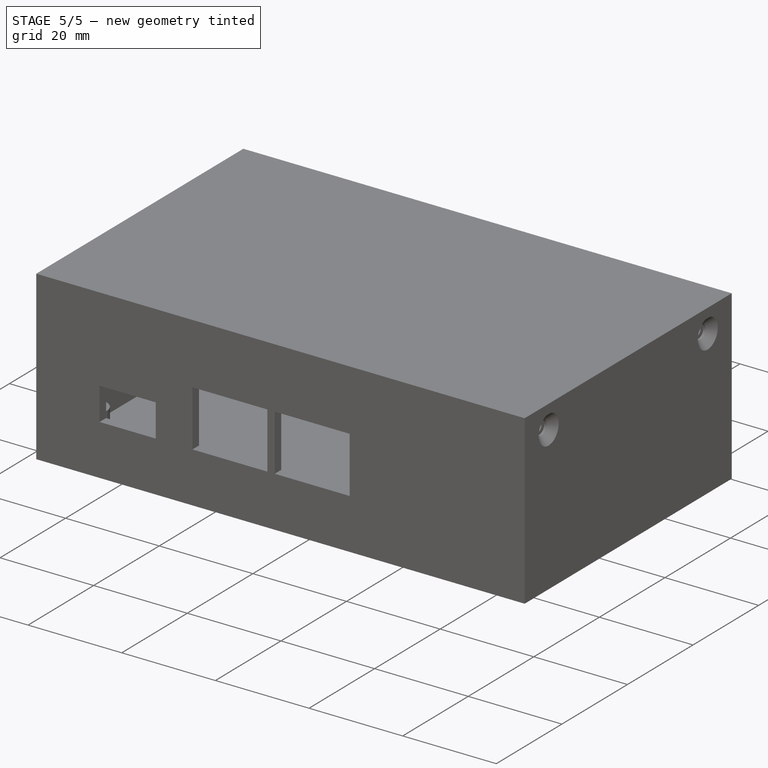
[diagram: stage 5 of 5 — iso view after this stage's code; geometry added in this stage tinted green]
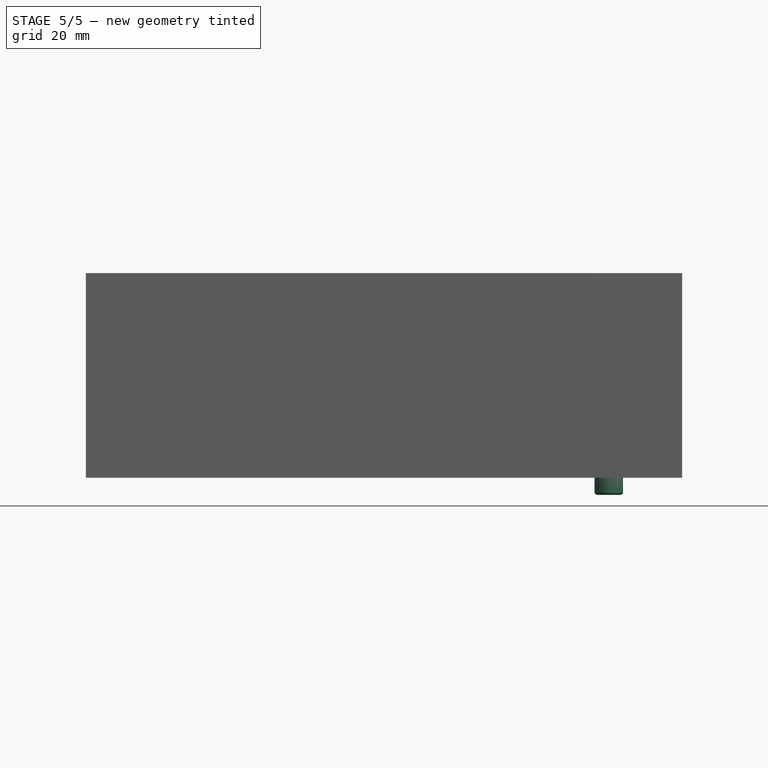
[diagram: stage 5 of 5 — front view after this stage's code; geometry added in this stage tinted green]
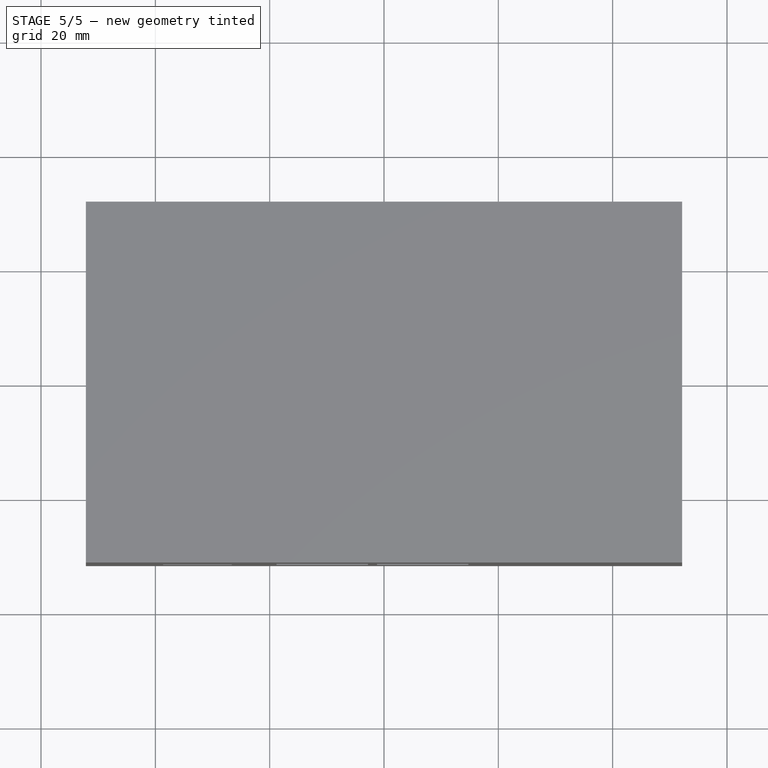
[diagram: stage 5 of 5 — top view after this stage's code; geometry added in this stage tinted green]
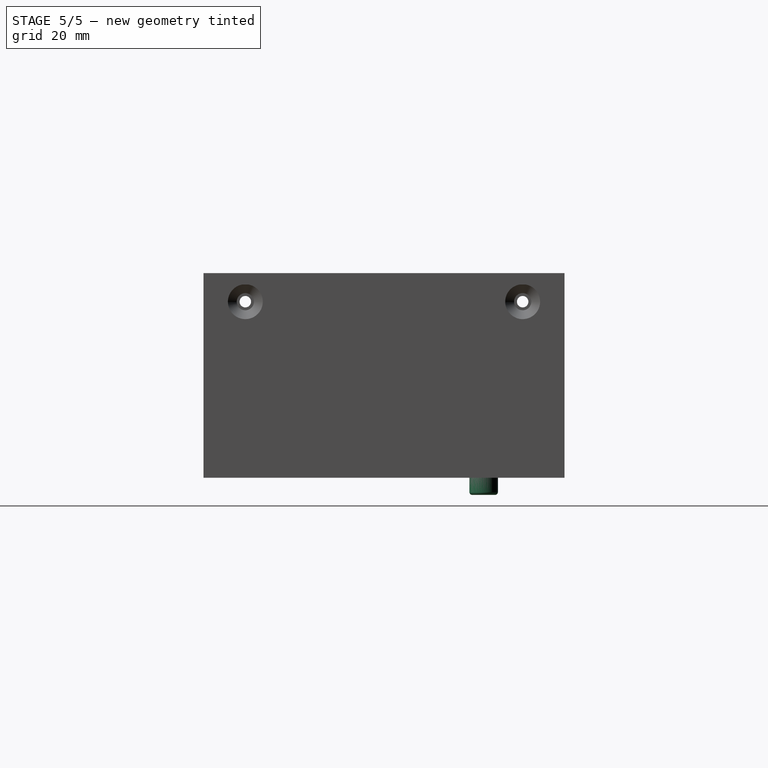
[diagram: stage 5 of 5 — right view after this stage's code; geometry added in this stage tinted green]
FEATURE [PartDesign::ShapeBinder] ShapeBinder
  Support = -> [Feature]
  TraceSupport = false
FEATURE [Sketcher::SketchObject] Sketch003
  AttachmentOffset = pos=(0,0,9.2) rot=(0,0,1;0rad)
  ExternalGeometry = -> [ShapeBinder]
  FullyConstrained = true
  MapMode = 5
  Placement = pos=(0,0,9.2) rot=(0,0,1;0rad)
  Support = -> [XY_Plane001]
  expr: .AttachmentOffset.Base.z = <<Masse>>.ddWand + <<Masse>>.ddSchraubstuetze
  expr: Constraints[28] = <<Masse>>.ddLEDdurchmesser
  expr: Constraints[29] = <<Masse>>.ddLEDdurchmesser
  expr: Constraints[52] = <<Masse>>.ddLEDdurchmesser / 2
  sketch-geometry (45):
    g0: ArcOfCircle CenterX=39.216 CenterY=6.804 CenterZ=0 NormalX=0 NormalY=0 NormalZ=1 AngleXU=0 Radius=3 StartAngle=1.5708 EndAngle=3.14159
    g1: LineSegment StartX=39.216 StartY=9.804 StartZ=0 EndX=39.416 EndY=9.804 EndZ=0
    g2: ArcOfCircle CenterX=39.416 CenterY=6.804 CenterZ=0 NormalX=0 NormalY=0 NormalZ=1 AngleXU=0 Radius=3 StartAngle=2e-16 EndAngle=1.5708
    g3: LineSegment StartX=42.416 StartY=6.804 StartZ=0 EndX=42.416 EndY=-19.377 EndZ=0
    g4: ArcOfCircle CenterX=39.416 CenterY=-19.377 CenterZ=0 NormalX=0 NormalY=0 NormalZ=1 AngleXU=0 Radius=3 StartAngle=4.71239 EndAngle=6.28319
    g5: LineSegment StartX=39.416 StartY=-22.377 StartZ=0 EndX=39.216 EndY=-22.377 EndZ=0
    g6: ArcOfCircle CenterX=39.216 CenterY=-19.377 CenterZ=0 NormalX=0 NormalY=0 NormalZ=1 AngleXU=0 Radius=3 StartAngle=3.14159 EndAngle=4.71239
    g7: LineSegment StartX=36.216 StartY=-19.377 StartZ=0 EndX=36.216 EndY=6.804 EndZ=0
    g8: GeomPoint X=36.216 Y=9.804 Z=0
    g9: GeomPoint X=42.416 Y=-22.377 Z=0
    g10: LineSegment StartX=39.316 StartY=6.604 StartZ=0 EndX=39.316 EndY=-19.177 EndZ=0
    g11: GeomPoint X=39.316 Y=-2.032 Z=0
    g12: GeomPoint X=39.316 Y=-10.922 Z=0
    g13: ArcOfCircle CenterX=38.046 CenterY=6.604 CenterZ=0 NormalX=0 NormalY=0 NormalZ=1 AngleXU=0 Radius=0.8 StartAngle=1.5708 EndAngle=4.71239
    g14: ArcOfCircle CenterX=40.586 CenterY=6.604 CenterZ=0 NormalX=0 NormalY=0 NormalZ=1 AngleXU=0 Radius=0.8 StartAngle=4.71239 EndAngle=7.85398
    g15: LineSegment StartX=38.046 StartY=5.804 StartZ=0 EndX=38.816 EndY=5.804 EndZ=0
    g16: LineSegment StartX=40.586 StartY=7.404 StartZ=0 EndX=39.816 EndY=7.404 EndZ=0
    g17: ArcOfCircle CenterX=38.046 CenterY=-2.032 CenterZ=0 NormalX=0 NormalY=0 NormalZ=1 AngleXU=0 Radius=0.8 StartAngle=1.5708 EndAngle=4.71239
    g18: ArcOfCircle CenterX=40.586 CenterY=-2.032 CenterZ=0 NormalX=0 NormalY=0 NormalZ=1 AngleXU=0 Radius=0.8 StartAngle=4.71239 EndAngle=7.85398
    g19: LineSegment StartX=38.046 StartY=-2.832 StartZ=0 EndX=38.816 EndY=-2.832 EndZ=0
    g20: LineSegment StartX=40.586 StartY=-1.232 StartZ=0 EndX=39.816 EndY=-1.232 EndZ=0
    g21: ArcOfCircle CenterX=38.046 CenterY=-10.922 CenterZ=0 NormalX=0 NormalY=0 NormalZ=1 AngleXU=0 Radius=0.8 StartAngle=1.5708 EndAngle=4.71239
    g22: ArcOfCircle CenterX=40.586 CenterY=-10.922 CenterZ=0 NormalX=0 NormalY=0 NormalZ=1 AngleXU=0 Radius=0.8 StartAngle=4.71239 EndAngle=7.85398
    g23: LineSegment StartX=38.046 StartY=-11.722 StartZ=0 EndX=38.816 EndY=-11.722 EndZ=0
    g24: LineSegment StartX=40.586 StartY=-10.122 StartZ=0 EndX=39.816 EndY=-10.122 EndZ=0
    g25: ArcOfCircle CenterX=38.046 CenterY=-19.177 CenterZ=0 NormalX=0 NormalY=0 NormalZ=1 AngleXU=0 Radius=0.8 StartAngle=1.5708 EndAngle=4.71239
    g26: ArcOfCircle CenterX=40.586 CenterY=-19.177 CenterZ=0 NormalX=0 NormalY=0 NormalZ=1 AngleXU=0 Radius=0.8 StartAngle=4.71239 EndAngle=7.85398
    g27: LineSegment StartX=38.046 StartY=-19.977 StartZ=0 EndX=38.816 EndY=-19.977 EndZ=0
    g28: LineSegment StartX=40.586 StartY=-18.377 StartZ=0 EndX=39.816 EndY=-18.377 EndZ=0
    g29: LineSegment StartX=38.816 StartY=-18.377 StartZ=0 EndX=38.816 EndY=-19.977 EndZ=0
    g30: LineSegment StartX=39.816 StartY=-18.377 StartZ=0 EndX=39.816 EndY=-19.977 EndZ=0
    g31: LineSegment StartX=39.816 StartY=-19.977 StartZ=0 EndX=40.586 EndY=-19.977 EndZ=0
    g32: LineSegment StartX=38.816 StartY=-18.377 StartZ=0 EndX=38.046 EndY=-18.377 EndZ=0
    g33: LineSegment StartX=38.816 StartY=-10.122 StartZ=0 EndX=38.816 EndY=-11.722 EndZ=0
    g34: LineSegment StartX=39.816 StartY=-10.122 StartZ=0 EndX=39.816 EndY=-11.722 EndZ=0
    g35: LineSegment StartX=38.816 StartY=-10.122 StartZ=0 EndX=38.046 EndY=-10.122 EndZ=0
    g36: LineSegment StartX=39.816 StartY=-11.722 StartZ=0 EndX=40.586 EndY=-11.722 EndZ=0
    g37: LineSegment StartX=38.816 StartY=-1.232 StartZ=0 EndX=38.816 EndY=-2.832 EndZ=0
    g38: LineSegment StartX=39.816 StartY=-1.232 StartZ=0 EndX=39.816 EndY=-2.832 EndZ=0
    g39: LineSegment StartX=38.816 StartY=-1.232 StartZ=0 EndX=38.046 EndY=-1.232 EndZ=0
    g40: LineSegment StartX=39.816 StartY=-2.832 StartZ=0 EndX=40.586 EndY=-2.832 EndZ=0
    g41: LineSegment StartX=38.816 StartY=7.404 StartZ=0 EndX=38.816 EndY=5.804 EndZ=0
    g42: LineSegment StartX=39.816 StartY=7.404 StartZ=0 EndX=39.816 EndY=5.804 EndZ=0
    g43: LineSegment StartX=38.816 StartY=7.404 StartZ=0 EndX=38.046 EndY=7.404 EndZ=0
    g44: LineSegment StartX=39.816 StartY=5.804 StartZ=0 EndX=40.586 EndY=5.804 EndZ=0
  constraints (119):
    c: Tangent(g0,g1) = 1.5708
    c: Tangent(g1,g2) = 1.5708
    c: Tangent(g2,g3) = 1.5708
    c: Tangent(g3,g4) = 1.5708
    c: Tangent(g4,g5) = 1.5708
    c: Tangent(g5,g6) = 1.5708
    c: Tangent(g6,g7) = 1.5708
    c: Tangent(g7,g0) = 1.5708
    c: Horizontal(g1)
    c: Horizontal(g5)
    c: Vertical(g3)
    c: Vertical(g7)
    c: Equal(g0,g2)
    c: Equal(g2,g4)
    c: Equal(g4,g6)
    c: PointOnObject(g8,g1)
    c: PointOnObject(g8,g7)
    c: PointOnObject(g9,g3)
    c: PointOnObject(g9,g5)
    c: Horizontal(g-9,g10)
    c: Symmetric(g-3,g-4,g10)
    c: PointOnObject(g11,g10)
    c: PointOnObject(g12,g10)
    c: Horizontal(g-5,g11)
    c: Horizontal(g-7,g12)
    c: Symmetric(g0,g2,g10)
    c: DistanceX(g1,g1) = 0.2
    c: Radius(g2) = 3
    c: DistanceY(g-3,g0) = 3.2
    c: DistanceY(g5,g-9) = 3.2
    c: Tangent(g13,g15) = -1.5708
    c: Coincident(g44,g14) = -1.5708
    c: Tangent(g14,g16) = -1.5708
    c: Coincident(g43,g13) = -1.5708
    c: Equal(g13,g14)
    c: Tangent(g17,g19) = -1.5708
    c: Coincident(g40,g18) = -1.5708
    c: Tangent(g18,g20) = -1.5708
    c: Coincident(g39,g17) = -1.5708
    c: Equal(g17,g18)
    c: Tangent(g21,g23) = -1.5708
    c: Coincident(g36,g22) = -1.5708
    c: Tangent(g22,g24) = -1.5708
    c: Coincident(g35,g21) = -1.5708
    c: Equal(g21,g22)
    c: Horizontal(g23)
    c: Tangent(g25,g27) = -1.5708
    c: Coincident(g31,g26) = -1.5708
    c: Tangent(g26,g28) = -1.5708
    c: Coincident(g32,g25) = -1.5708
    c: Equal(g25,g26)
    c: DistanceX(g32,g28) = 2.54
    c: DistanceY(g26,g26) = 1.6
    c: Coincident(g25,g-9)
    c: Equal(g25,g21)
    c: Equal(g21,g17)
    c: Equal(g17,g13)
    c: Coincident(g21,g-7)
    c: Coincident(g17,g-5)
    c: Coincident(g13,g-3)
    c: PointOnObject(g29,g28)
    c: Vertical(g29)
    c: Vertical(g30)
    c: Symmetric(g29,g30,g10)
    c: Coincident(g27,g29)
    c: Coincident(g31,g30)
    c: PointOnObject(g28,g30)
    c: DistanceX(g27,g30) = 1
    c: Horizontal(g25,g29)
    c: Horizontal(g29,g28)
    c: Horizontal(g25,g27)
    c: Horizontal(g27,g30)
    c: Vertical(g25,g25)
    c: Vertical(g26,g26)
    c: Coincident(g32,g29)
    c: PointOnObject(g33,g24)
    c: Vertical(g33)
    c: Vertical(g34)
    c: Coincident(g24,g34)
    c: Coincident(g36,g34)
    c: Coincident(g23,g33)
    c: Vertical(g29,g23)
    c: Vertical(g28,g34)
    c: Horizontal(g23,g34)
    c: Horizontal(g34,g22)
    c: Coincident(g35,g33)
    c: Horizontal(g21,g33)
    c: Vertical(g21,g21)
    c: Coincident(g22,g-8)
    c: PointOnObject(g37,g20)
    c: Vertical(g37)
    c: PointOnObject(g38,g19)
    c: Vertical(g38)
    c: Vertical(g37,g33)
    c: Vertical(g38,g24)
    c: Coincident(g20,g38)
    c: Coincident(g19,g37)
    c: Vertical(g18,g18)
    c: Vertical(g18,g18)
    c: Vertical(g17,g17)
    c: Horizontal(g17,g19)
    c: Coincident(g18,g-6)
    c: Coincident(g40,g38)
    c: Coincident(g39,g37)
    c: Vertical(g41)
    c: Vertical(g42)
    c: Coincident(g16,g42)
    c: Coincident(g43,g41)
    c: Coincident(g44,g42)
    c: Coincident(g15,g41)
    c: Vertical(g37,g15)
    c: Vertical(g42,g20)
    c: Vertical(g13,g13)
    c: Vertical(g14,g14)
    c: Vertical(g14,g14)
    c: Coincident(g14,g-4)
    c: Horizontal(g13,g15)
    c: Horizontal(g15,g42)
    c: Horizontal(g41,g16)
FEATURE [PartDesign::Pad] Pad003
  Direction = (0,0,1)
  Length = 4.2
  Length2 = 10
  Profile = -> Sketch003
  ReferenceAxis = -> Sketch003 [N_Axis]
  Reversed = true
  Type = 0
  expr: Length = <<Masse>>.ddWand + <<Masse>>.ddSchraubstuetze - <<Masse>>.ddLEDhoehe
FEATURE [PartDesign::Body] Body001  label="LED-Riser"
  Group = -> [ShapeBinder,Sketch003,Pad003]
  Origin = -> Origin001
  Tip = -> Pad003
FEATURE [PartDesign::ShapeBinder] ShapeBinder002
  Support = -> [Feature]
  TraceSupport = false
FEATURE [Sketcher::SketchObject] Sketch004
  AttachmentOffset = pos=(0,0,2) rot=(0,0,1;0rad)
  ExternalGeometry = -> [ShapeBinder002]
  FullyConstrained = true
  MapMode = 5
  Placement = pos=(0,0,2) rot=(0,0,1;0rad)
  Support = -> [XY_Plane002]
  expr: .AttachmentOffset.Base.z = <<Masse>>.ddWand
  expr: Constraints[3] = <<Masse>>.ddTastendurchmesser - 0.2mm
  sketch-geometry (2):
    g0: LineSegment StartX=36.071 StartY=19.685 StartZ=0 EndX=42.571 EndY=15.185 EndZ=0
    g1: Circle CenterX=39.321 CenterY=17.435 CenterZ=0 NormalX=0 NormalY=0 NormalZ=1 AngleXU=0 Radius=2.5
  constraints (4):
    c: Coincident(g0,g-3)
    c: Coincident(g0,g-4)
    c: Symmetric(g0,g0,g1)
    c: Diameter(g1) = 5
FEATURE [PartDesign::Pad] Pad004
  Direction = (0,0,1)
  Length = 5
  Length2 = 10
  Profile = -> Sketch004
  ReferenceAxis = -> Sketch004 [N_Axis]
  Reversed = true
  Type = 0
  expr: Length = 2.5 * <<Masse>>.ddWand
FEATURE [Sketcher::SketchObject] Sketch005
  AttachmentOffset = pos=(0,0,2) rot=(0,0,1;0rad)
  ExternalGeometry = -> [ShapeBinder002]
  FullyConstrained = true
  MapMode = 5
  Placement = pos=(0,0,2) rot=(0,0,1;0rad)
  Support = -> [XY_Plane002]
  expr: .AttachmentOffset.Base.z = <<Masse>>.ddWand
  expr: Constraints[3] = <<Masse>>.ddTastendurchmesser + 3.2mm
  sketch-geometry (2):
    g0: LineSegment StartX=36.071 StartY=19.685 StartZ=0 EndX=42.571 EndY=15.185 EndZ=0
    g1: Circle CenterX=39.321 CenterY=17.435 CenterZ=0 NormalX=0 NormalY=0 NormalZ=1 AngleXU=0 Radius=4.2
  constraints (4):
    c: Coincident(g0,g-3)
    c: Coincident(g0,g-4)
    c: Symmetric(g0,g0,g1)
    c: Diameter(g1) = 8.4
FEATURE [PartDesign::Pad] Pad005
  BaseFeature = -> Pad004
  Direction = (0,0,1)
  Length = 2
  Length2 = 10
  Profile = -> Sketch005
  ReferenceAxis = -> Sketch005 [N_Axis]
  Type = 0
  expr: Length = <<Masse>>.ddWand
FEATURE [PartDesign::Fillet] Fillet
  Base = -> Pad005 [Face5]
  BaseFeature = -> Pad005
  Radius = 0.5
  SupportTransform = false
  UseAllEdges = false
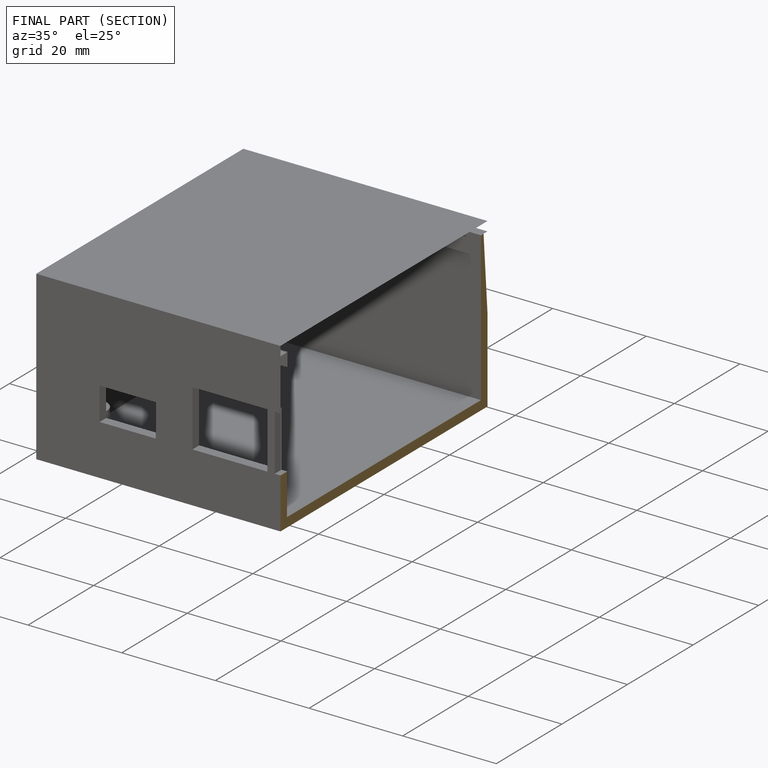
[diagram: finished part — half-section view (interior)]
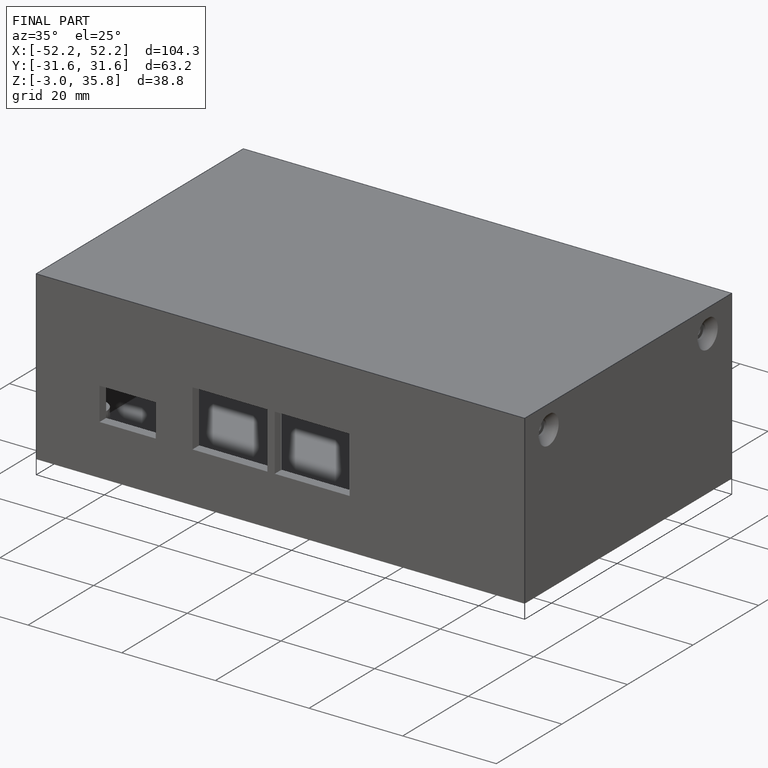
[diagram: finished part — iso view with bounding-box wireframe]
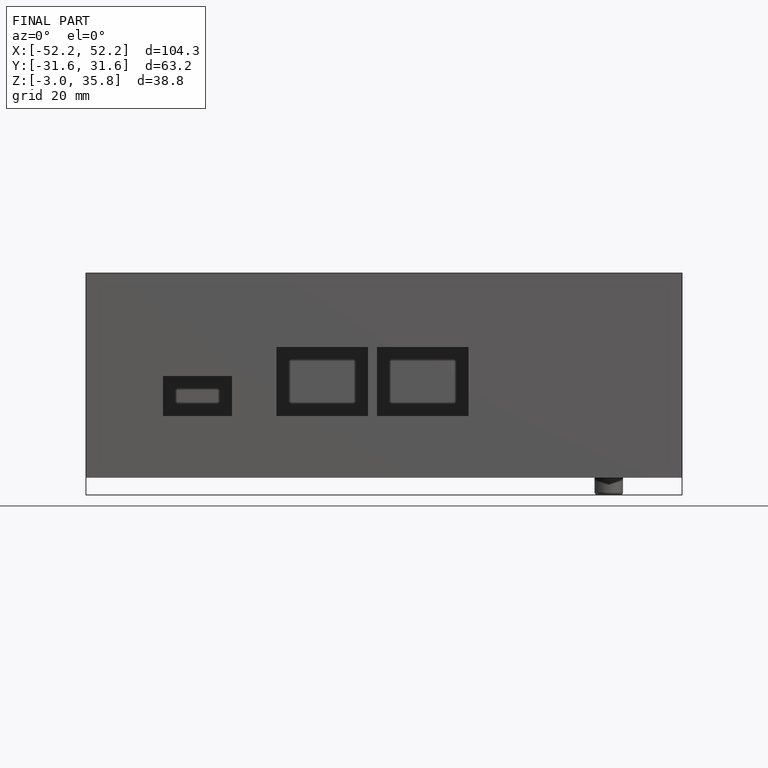
[diagram: finished part — front view with bounding-box wireframe]
